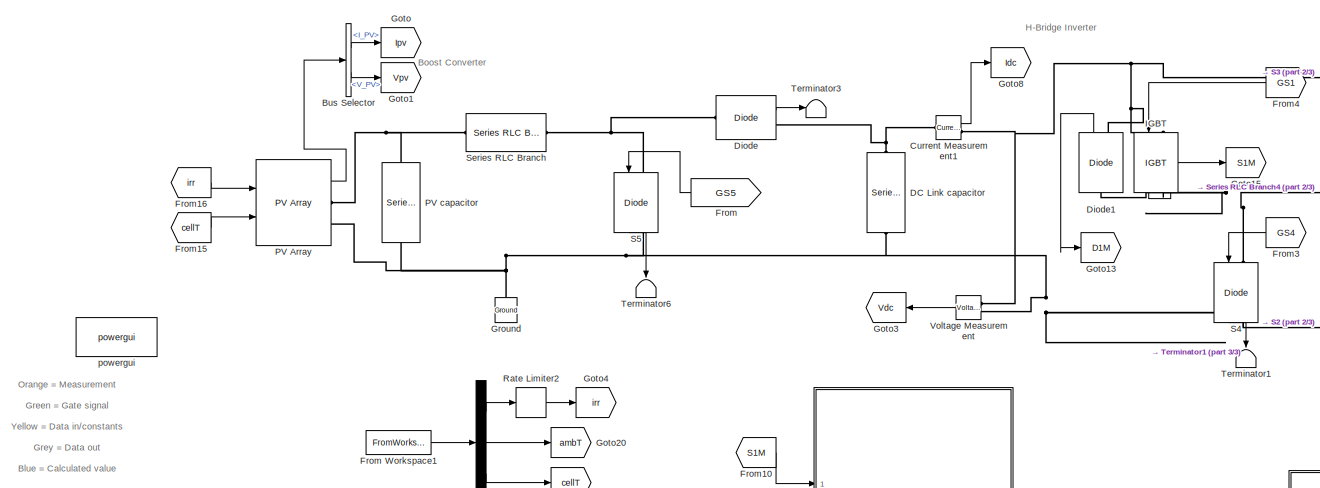
[diagram: root canvas - part 1/3, top left region]
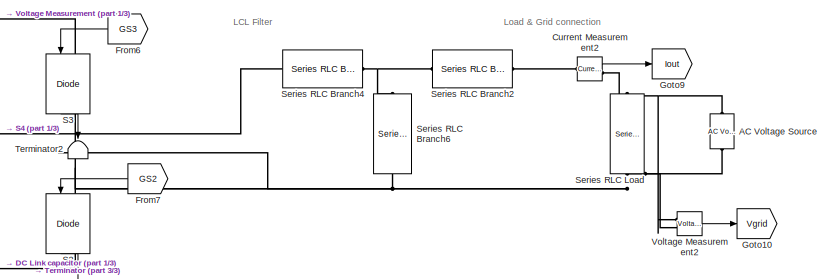
[diagram: root canvas - part 2/3, top right region]
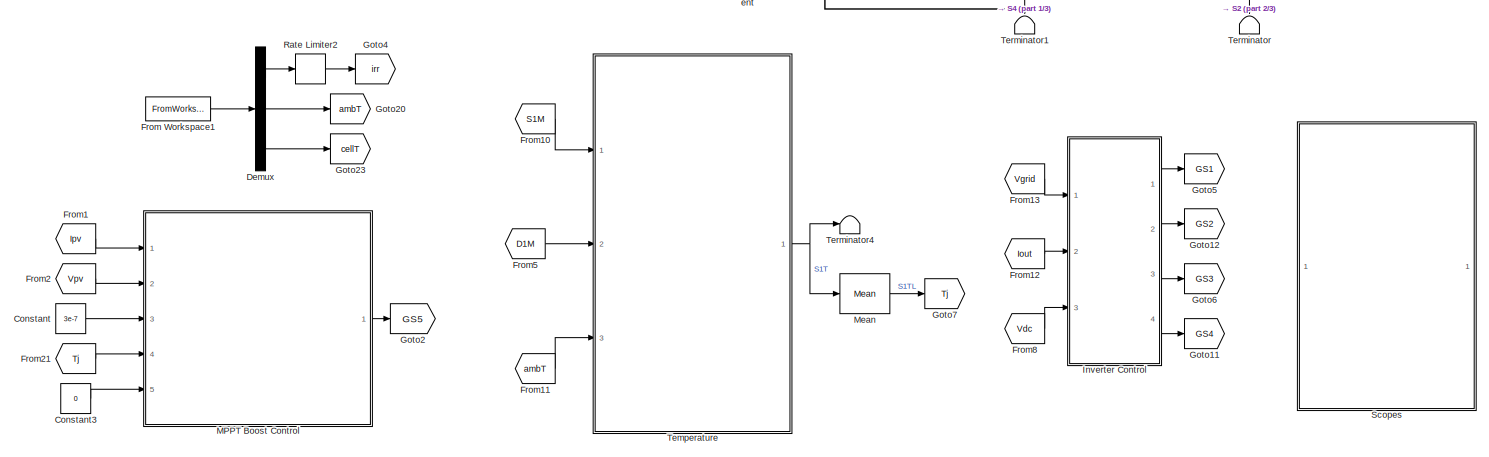
[diagram: root canvas - part 3/3, bottom center region]
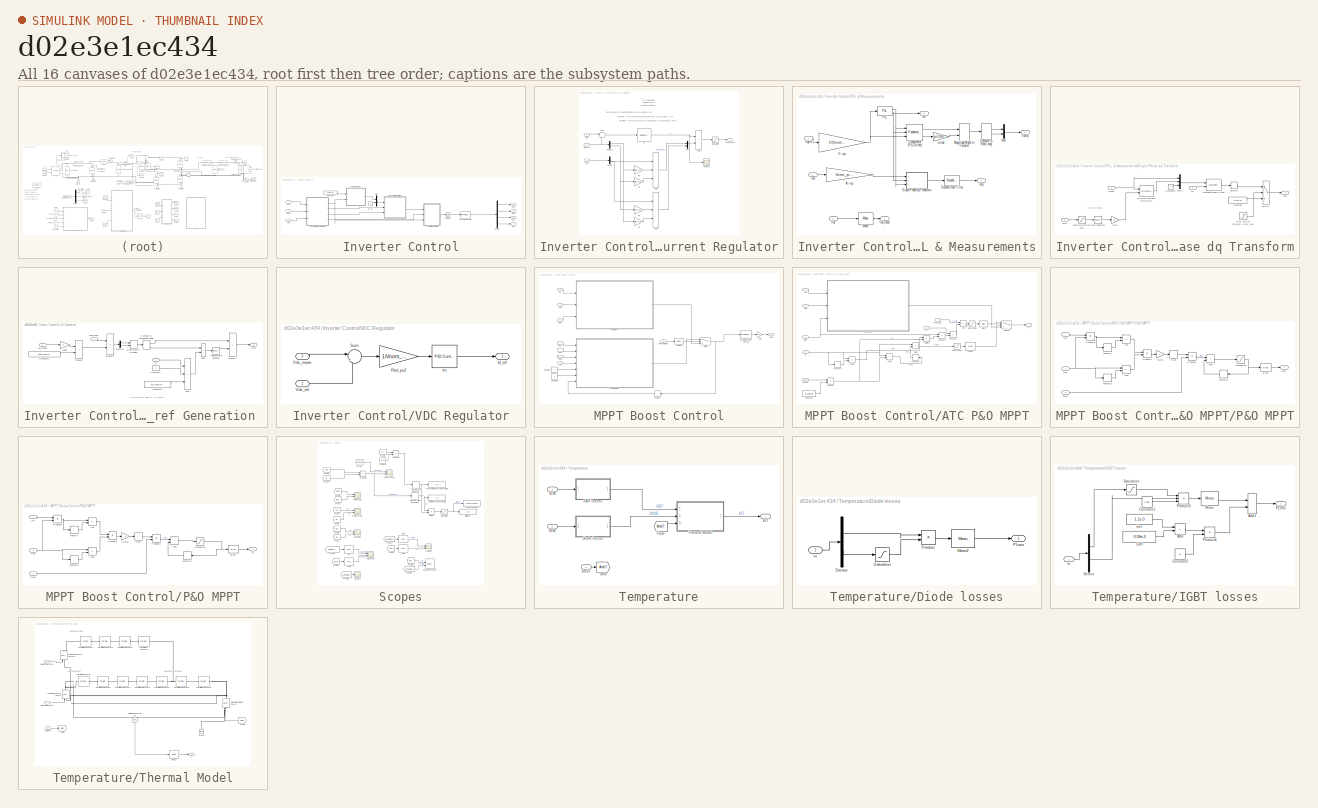
[diagram: thumbnail index - all 16 canvases of the model, root first then tree order]
MODEL slx_d02e3e1ec434
KIND model
CONFIG AbsTol = auto
CONFIG EnableMultiTasking = off
CONFIG FixedStep = Ts_Power
CONFIG InitFcn = freq = 60;\nn = 100;\na = 20;\nb = 10;\nc = 150;\n\nFc = n * freq; % Carrier frequency, used for generating inverter SPWM signal (Hz)\nTs_Power = 1/(a * Fc); % SPS sample time (sec)\nTs_Control = b * Ts_Power; % Inverter control sample time (sec)\nTs_Data = c * Ts_Power; % Data storage and scope sample time (sec)\n\nDbias = 0.0;\nDupperlim = 0.5;\nDlowerlim = 0.2;\n\nRon=75e-3;
CONFIG MaxStep = auto
CONFIG MinStep = auto
CONFIG RelTol = 1e-3
CONFIG SampleTimeConstraint = Unconstrained
CONFIG SolverName = FixedStepDiscrete
CONFIG StartTime = 0.0
CONFIG StopFcn = %load('temp1.mat')\n%[c,hist,edges,rmm,idx] = rainflow(temp.Data(:,3),temp.Time);\n%histogram('BinEdges',edges','BinCounts',sum(hist,2));\n%title('Histogram of S5 Thermal Cycles')\n%xlabel('Temperature Cycle Range')\n%ylabel('Cycle count')
CONFIG StopTime = 80
BLOCK [Reference] AC Voltage Source  REF=spsACVoltageSourceLib/AC Voltage Source
  Ports = [0, 0, 0, 0, 0, 1, 1]
  SourceBlock = spsACVoltageSourceLib/AC Voltage Source
  SourceProductBaseCode = PS
  SourceType = AC Voltage Source
BLOCK [BusSelector] Bus Selector
  OutputSignals = I_PV,V_PV
  Ports = [1, 2]
BLOCK [Constant] Constant
  Value = 3e-7
BLOCK [Constant] Constant3
  Value = 0
BLOCK [Reference] Current Measurement1  REF=spsCurrentMeasurementLib/Current Measurement
  Ports = [0, 1, 0, 0, 0, 1, 1]
  SourceBlock = spsCurrentMeasurementLib/Current Measurement
  SourceProductBaseCode = PS
  SourceType = Current Measurement
  UserDataPersistent = on
BLOCK [Reference] Current Measurement2  REF=spsCurrentMeasurementLib/Current Measurement
  Ports = [0, 1, 0, 0, 0, 1, 1]
  SourceBlock = spsCurrentMeasurementLib/Current Measurement
  SourceProductBaseCode = PS
  SourceType = Current Measurement
  UserDataPersistent = on
BLOCK [Reference] DC Link capacitor  REF=spsSeriesRLCBranchLib/Series RLC Branch
  NameLocation = right
  Ports = [0, 0, 0, 0, 0, 1, 1]
  SourceBlock = spsSeriesRLCBranchLib/Series RLC Branch
  SourceProductBaseCode = PS
  SourceType = Series RLC Branch
BLOCK [Demux] Demux
  Outputs = 3
  Ports = [1, 3]
BLOCK [Reference] Diode  REF=spsDiodeLib/Diode
  Ports = [0, 1, 0, 0, 0, 1, 1]
  SourceBlock = spsDiodeLib/Diode
  SourceProductBaseCode = PS
  SourceType = Diode
BLOCK [Reference] Diode1  REF=spsDiodeLib/Diode
  NameLocation = right
  Ports = [0, 1, 0, 0, 0, 1, 1]
  SourceBlock = spsDiodeLib/Diode
  SourceProductBaseCode = PS
  SourceType = Diode
BLOCK [From] From
  GotoTag = GS5
BLOCK [FromWorkspace] From Workspace1
  OutputAfterFinalValue = Holding final value
  SampleTime = Ts_Power
  VariableName = simin
BLOCK [From] From1
  GotoTag = Ipv
  TagVisibility = global
BLOCK [From] From10
  GotoTag = S1M
BLOCK [From] From11
  GotoTag = ambT
BLOCK [From] From12
  GotoTag = Iout
  TagVisibility = global
BLOCK [From] From13
  GotoTag = Vgrid
  TagVisibility = global
BLOCK [From] From15
  GotoTag = cellT
BLOCK [From] From16
  GotoTag = irr
  TagVisibility = global
BLOCK [From] From2
  GotoTag = Vpv
  TagVisibility = global
BLOCK [From] From21
  GotoTag = Tj
  TagVisibility = global
BLOCK [From] From3
  GotoTag = GS4
BLOCK [From] From4
  GotoTag = GS1
BLOCK [From] From5
  GotoTag = D1M
BLOCK [From] From6
  GotoTag = GS3
BLOCK [From] From7
  GotoTag = GS2
BLOCK [From] From8
  GotoTag = Vdc
  TagVisibility = global
BLOCK [Goto] Goto
  GotoTag = Ipv
  TagVisibility = global
BLOCK [Goto] Goto1
  GotoTag = Vpv
  TagVisibility = global
BLOCK [Goto] Goto10
  GotoTag = Vgrid
  TagVisibility = global
BLOCK [Goto] Goto11
  GotoTag = GS4
BLOCK [Goto] Goto12
  GotoTag = GS2
BLOCK [Goto] Goto13
  GotoTag = D1M
BLOCK [Goto] Goto15
  GotoTag = S1M
BLOCK [Goto] Goto2
  GotoTag = GS5
BLOCK [Goto] Goto20
  GotoTag = ambT
BLOCK [Goto] Goto23
  GotoTag = cellT
BLOCK [Goto] Goto3
  GotoTag = Vdc
  TagVisibility = global
BLOCK [Goto] Goto4
  GotoTag = irr
  TagVisibility = global
BLOCK [Goto] Goto5
  GotoTag = GS1
BLOCK [Goto] Goto6
  GotoTag = GS3
BLOCK [Goto] Goto7
  GotoTag = Tj
  TagVisibility = global
BLOCK [Goto] Goto8
  GotoTag = Idc
  TagVisibility = global
BLOCK [Goto] Goto9
  GotoTag = Iout
  TagVisibility = global
BLOCK [Reference] Ground  REF=spsGroundLib/Ground
  NameLocation = right
  Ports = [0, 0, 0, 0, 0, 1]
  SourceBlock = spsGroundLib/Ground
  SourceProductBaseCode = PS
  SourceType = Ground
BLOCK [Reference] IGBT  REF=spsIGBTLib/IGBT
  NameLocation = left
  Ports = [1, 1, 0, 0, 0, 1, 1]
  SourceBlock = spsIGBTLib/IGBT
  SourceProductBaseCode = PS
  SourceType = IGBT
BLOCK [SubSystem] Inverter Control
  Ports = [3, 4]
  RequestExecContextInheritance = off
BLOCK [SubSystem] Inverter Control/Current Regulator
  Ports = [3, 1]
  RequestExecContextInheritance = off
BLOCK [Sum] Inverter Control/Current Regulator/Add1
  IconShape = rectangular
  Inputs = ++-
  Ports = [3, 1]
BLOCK [Sum] Inverter Control/Current Regulator/Add2
  IconShape = rectangular
  Ports = [2, 1]
BLOCK [Sum] Inverter Control/Current Regulator/Add3
  IconShape = rectangular
  Inputs = +++
  Ports = [3, 1]
BLOCK [Demux] Inverter Control/Current Regulator/Demux
  Outputs = 2
  Ports = [1, 2]
BLOCK [Demux] Inverter Control/Current Regulator/Demux1
  Outputs = 2
  Ports = [1, 2]
BLOCK [Inport] Inverter Control/Current Regulator/IdIq
  Port = 3
  PortDimensions = 2
BLOCK [Inport] Inverter Control/Current Regulator/IdIq_ref
  PortDimensions = 2
BLOCK [Gain] Inverter Control/Current Regulator/Lff
  Gain = RLff(2)
  OutDataTypeStr = Inherit: Same as input
  ParamDataTypeStr = Inherit: Same as input
  SaturateOnIntegerOverflow = on
BLOCK [Gain] Inverter Control/Current Regulator/Lff  
  Gain = RLff(2)
  OutDataTypeStr = Inherit: Same as input
  ParamDataTypeStr = Inherit: Same as input
  SaturateOnIntegerOverflow = on
BLOCK [Mux] Inverter Control/Current Regulator/Mux
  DisplayOption = bar
  Inputs = 2
  Ports = [2, 1]
BLOCK [Reference] Inverter Control/Current Regulator/PI  REF=slpidlib/PID Controller
  Ports = [1, 1]
  SourceBlock = slpidlib/PID Controller
  SourceProductBaseCode = SL
  SourceType = PID 1dof
BLOCK [Scope] Inverter Control/Current Regulator/PI_Ireg1
  Floating = off
  NumInputPorts = 1
  Ports = [1]
  ScopeSpecificationString = Simulink.scopes.TimeScopeBlockCfg('CurrentConfiguration', extmgr.ConfigurationSet(extmgr.Configuration('Core','General UI',true),extmgr.Configuration('Core','Source UI',true),extmgr.Configuration('Sources','WiredSimulink',true,'DataLoggingSaveFormat','Array','DataLoggingDecimation','1','DataLoggingDecimateData',true),extmgr.Configuration('Visuals','Time Domain',true,'SerializedDisplays',{struct('M...<+1557ch>
BLOCK [Gain] Inverter Control/Current Regulator/Rff
  Gain = RLff(1)
  NameLocation = top
  OutDataTypeStr = Inherit: Same as input
  ParamDataTypeStr = Inherit: Same as input
  SaturateOnIntegerOverflow = on
BLOCK [Gain] Inverter Control/Current Regulator/Rff 
  Gain = RLff(1)
  NameLocation = top
  OutDataTypeStr = Inherit: Same as input
  ParamDataTypeStr = Inherit: Same as input
  SaturateOnIntegerOverflow = on
BLOCK [Saturate] Inverter Control/Current Regulator/Saturation
  LowerLimit = -1.5
  UpperLimit = 1.5
BLOCK [Sum] Inverter Control/Current Regulator/Sum
  Inputs = |-+
  Ports = [2, 1]
BLOCK [Inport] Inverter Control/Current Regulator/VdVq
  Port = 2
  PortDimensions = 2
BLOCK [Outport] Inverter Control/Current Regulator/VdVq_conv
  VectorParamsAs1DForOutWhenUnconnected = off
BLOCK [Demux] Inverter Control/Demux
  Ports = [1, 4]
BLOCK [Outport] Inverter Control/GS1
  NameLocation = top
  VectorParamsAs1DForOutWhenUnconnected = off
BLOCK [Outport] Inverter Control/GS2
  NameLocation = top
  Port = 2
  VectorParamsAs1DForOutWhenUnconnected = off
BLOCK [Outport] Inverter Control/GS3
  NameLocation = top
  Port = 3
  VectorParamsAs1DForOutWhenUnconnected = off
BLOCK [Outport] Inverter Control/GS4
  NameLocation = top
  Port = 4
  VectorParamsAs1DForOutWhenUnconnected = off
BLOCK [Inport] Inverter Control/Iout
  Port = 2
  PortDimensions = 1
BLOCK [Constant] Inverter Control/Iq_ref
  NameLocation = top
  SampleTime = Ts_Control
  Value = 0
BLOCK [Mux] Inverter Control/Mux
  DisplayOption = bar
  Inputs = 2
  Ports = [2, 1]
BLOCK [SubSystem] Inverter Control/PLL & Measurements
  Ports = [3, 4]
  RequestExecContextInheritance = off
BLOCK [Gain] Inverter Control/PLL & Measurements/A->pu
  Gain = Vnom_prim/Pnom/sqrt(2)
  OutDataTypeStr = Inherit: Same as input
  ParamDataTypeStr = Inherit: Same as input
  SaturateOnIntegerOverflow = on
BLOCK [ComplexToRealImag] Inverter Control/PLL & Measurements/Complex to Real-Imag
  Ports = [1, 2]
BLOCK [Reference] Inverter Control/PLL & Measurements/Fundamental (PLL-Driven)  REF=spsFundamentalPLLDrivenLib/Fundamental
(PLL-Driven)
  Ports = [3, 2]
  SourceBlock = spsFundamentalPLLDrivenLib/Fundamental\n(PLL-Driven)
  SourceProductBaseCode = PS
  SourceType = Fundamental (PLL-Driven)
BLOCK [Outport] Inverter Control/PLL & Measurements/IdIq
  Port = 3
  VectorParamsAs1DForOutWhenUnconnected = off
BLOCK [Inport] Inverter Control/PLL & Measurements/Iout
  Port = 2
BLOCK [MagnitudeAngleToComplex] Inverter Control/PLL & Measurements/Magnitude-Angle to Complex
  Ports = [2, 1]
BLOCK [Reference] Inverter Control/PLL & Measurements/Mean  REF=spsMeanLib/Mean
  Ports = [1, 1]
  SourceBlock = spsMeanLib/Mean
  SourceProductBaseCode = PS
  SourceType = Mean
BLOCK [Mux] Inverter Control/PLL & Measurements/Mux
  DisplayOption = bar
  Inputs = 2
  Ports = [2, 1]
BLOCK [Reference] Inverter Control/PLL & Measurements/PLL  REF=spsPLLLib/PLL
  Ports = [1, 2]
  SourceBlock = spsPLLLib/PLL
  SourceProductBaseCode = PS
  SourceType = PLL
BLOCK [Reference] Inverter Control/PLL & Measurements/Second-Order Filter  REF=spsSecondOrderFilterLib/Second-Order
Filter
  Ports = [1, 1]
  SourceBlock = spsSecondOrderFilterLib/Second-Order\nFilter
  SourceProductBaseCode = PS
  SourceType = Second-Order Filter
BLOCK [SubSystem] Inverter Control/PLL & Measurements/Single-Phase dq Transform
  Ports = [3, 1]
  RequestExecContextInheritance = off
BLOCK [Reference] Inverter Control/PLL & Measurements/Single-Phase dq Transform/Alpha-Beta-Zero to dq0  REF=spsAlphaBetaZerotodq0Lib/Alpha-Beta-Zero
to dq0
  Ports = [2, 1]
  SourceBlock = spsAlphaBetaZerotodq0Lib/Alpha-Beta-Zero\nto dq0
  SourceProductBaseCode = PS
  SourceType = Alpha-Beta-Zero to dq0 Transformation
BLOCK [Constant] Inverter Control/PLL & Measurements/Single-Phase dq Transform/Constant
  Value = [0.92 0]
BLOCK [Constant] Inverter Control/PLL & Measurements/Single-Phase dq Transform/Constant1
  Value = 0
BLOCK [Reference] Inverter Control/PLL & Measurements/Single-Phase dq Transform/Discrete Variable Time Delay  REF=spsDiscreteVariableTimeDelayLib/Discrete Variable
Time Delay
  Ports = [2, 1]
  SourceBlock = spsDiscreteVariableTimeDelayLib/Discrete Variable\nTime Delay
  SourceProductBaseCode = PS
  SourceType = Discrete Variable Time Delay
BLOCK [Step] Inverter Control/PLL & Measurements/Single-Phase dq Transform/First cycle of simulation Id=0.92, Iq=0
  SampleTime = Ts_Control
  Time = 1/Fnom
BLOCK [Inport] Inverter Control/PLL & Measurements/Single-Phase dq Transform/Freq
  Port = 3
BLOCK [Gain] Inverter Control/PLL & Measurements/Single-Phase dq Transform/Gain
  Gain = 1/4
BLOCK [Outport] Inverter Control/PLL & Measurements/Single-Phase dq Transform/Idq
  VectorParamsAs1DForOutWhenUnconnected = off
BLOCK [Inport] Inverter Control/PLL & Measurements/Single-Phase dq Transform/Imeas
BLOCK [Math] Inverter Control/PLL & Measurements/Single-Phase dq Transform/Math Function
  Operator = reciprocal
  Ports = [1, 1]
  SignedPower = on
BLOCK [Mux] Inverter Control/PLL & Measurements/Single-Phase dq Transform/Mux1
  DisplayOption = bar
  Inputs = 3
  Ports = [3, 1]
BLOCK [Selector] Inverter Control/PLL & Measurements/Single-Phase dq Transform/Selector
  IndexOptions = Index vector (dialog)
  Indices = [1 2]
  InputPortWidth = 3
  OutputSizes = 1
  Ports = [1, 1]
BLOCK [Switch] Inverter Control/PLL & Measurements/Single-Phase dq Transform/Switch
  Criteria = u2 ~= 0
  InputSameDT = off
  SaturateOnIntegerOverflow = off
BLOCK [Saturate] Inverter Control/PLL & Measurements/Single-Phase dq Transform/avoid division by zero
  LowerLimit = 30
  UpperLimit = 60
BLOCK [Inport] Inverter Control/PLL & Measurements/Single-Phase dq Transform/wt
  Port = 2
BLOCK [Gain] Inverter Control/PLL & Measurements/V->pu
  Gain = 1/(Vnom_prim*sqrt(2))
  OutDataTypeStr = Inherit: Same as input
  ParamDataTypeStr = Inherit: Same as input
  SaturateOnIntegerOverflow = on
BLOCK [Outport] Inverter Control/PLL & Measurements/VdVq
  Port = 2
  VectorParamsAs1DForOutWhenUnconnected = off
BLOCK [Inport] Inverter Control/PLL & Measurements/Vdc
  Port = 3
BLOCK [Outport] Inverter Control/PLL & Measurements/Vdc_mean
  VectorParamsAs1DForOutWhenUnconnected = off
BLOCK [Inport] Inverter Control/PLL & Measurements/Vgrid
BLOCK [Gain] Inverter Control/PLL & Measurements/to-rad
  Gain = pi/180
BLOCK [Outport] Inverter Control/PLL & Measurements/wt
  Port = 4
  VectorParamsAs1DForOutWhenUnconnected = off
BLOCK [Reference] Inverter Control/PWM_Generator  REF=spsPWMGenerator2LevelLib/PWM Generator
(2-Level)
  AttributesFormatString = %<ModulatorType>
  Ports = [1, 1]
  SourceBlock = spsPWMGenerator2LevelLib/PWM Generator\n(2-Level)
  SourceProductBaseCode = PS
  SourceType = PWM Generator (2-Level)
BLOCK [SubSystem] Inverter Control/U_ref Generation 
  Ports = [3, 1]
  RequestExecContextInheritance = off
BLOCK [Sum] Inverter Control/U_ref Generation /Add1
  IconShape = rectangular
  Inputs = +++
  Ports = [3, 1]
BLOCK [Sum] Inverter Control/U_ref Generation /Add2
  IconShape = rectangular
  Ports = [2, 1]
BLOCK [ComplexToMagnitudeAngle] Inverter Control/U_ref Generation /Complex to Magnitude-Angle
  Ports = [1, 2]
BLOCK [Constant] Inverter Control/U_ref Generation /Constant2
  SampleTime = Ts_Control
  Value = 0
BLOCK [Constant] Inverter Control/U_ref Generation /Constant3
  SampleTime = Ts_Control
  Value = Vnom_prim*sqrt(2)
BLOCK [Constant] Inverter Control/U_ref Generation /Constant4
  SampleTime = Ts_Control
  Value = Ts_Control*Fnom*(2*pi)
BLOCK [Demux] Inverter Control/U_ref Generation /Demux1
  Outputs = 2
  Ports = [1, 2]
BLOCK [Gain] Inverter Control/U_ref Generation /Gain1
BLOCK [Product] Inverter Control/U_ref Generation /Product
  Inputs = */
  Ports = [2, 1]
  RndMeth = Zero
BLOCK [Product] Inverter Control/U_ref Generation /Product1
  Inputs = */
  Ports = [2, 1]
  RndMeth = Zero
BLOCK [Product] Inverter Control/U_ref Generation /Product2
  Inputs = **
  Ports = [2, 1]
  RndMeth = Zero
BLOCK [RealImagToComplex] Inverter Control/U_ref Generation /Real-Imag to Complex
  Ports = [2, 1]
BLOCK [Trigonometry] Inverter Control/U_ref Generation /Trigonometric Function
  Ports = [1, 1]
BLOCK [Outport] Inverter Control/U_ref Generation /Uref
  VectorParamsAs1DForOutWhenUnconnected = off
BLOCK [Inport] Inverter Control/U_ref Generation /VdVq_conv
BLOCK [Inport] Inverter Control/U_ref Generation /Vdc_mean
  Port = 3
BLOCK [Inport] Inverter Control/U_ref Generation /wt
  Port = 2
BLOCK [UnitDelay] Inverter Control/Unit Delay
  HasFrameUpgradeWarning = on
  NameLocation = top
  SampleTime = Ts_Control
BLOCK [SubSystem] Inverter Control/VDC Regulator
  NameLocation = top
  Ports = [2, 1]
  RequestExecContextInheritance = off
BLOCK [Outport] Inverter Control/VDC Regulator/Id_ref
  InitialOutput = 0
  VectorParamsAs1DForOutWhenUnconnected = off
BLOCK [Reference] Inverter Control/VDC Regulator/PI  REF=slpidlib/PID Controller
  Ports = [1, 1]
  SourceBlock = slpidlib/PID Controller
  SourceProductBaseCode = SL
  SourceType = PID 1dof
BLOCK [Gain] Inverter Control/VDC Regulator/Rtot_pu2
  Gain = 1/Vnom_dc
  OutDataTypeStr = Inherit: Same as input
  ParamDataTypeStr = Inherit: Same as input
  SaturateOnIntegerOverflow = on
BLOCK [Sum] Inverter Control/VDC Regulator/Sum
  Inputs = |+-
  Ports = [2, 1]
BLOCK [Inport] Inverter Control/VDC Regulator/Vdc_mean
  Port = 2
  PortDimensions = 1
BLOCK [Inport] Inverter Control/VDC Regulator/Vdc_ref
  PortDimensions = 1
BLOCK [Inport] Inverter Control/Vdc
  Port = 3
  PortDimensions = 1
BLOCK [Inport] Inverter Control/Vgrid
  PortDimensions = 1
BLOCK [Constant] Inverter Control/Vnom_dc1
  SampleTime = Ts_Control
  Value = Vnom_dc
BLOCK [SubSystem] MPPT Boost Control
  Ports = [5, 1]
  RequestExecContextInheritance = off
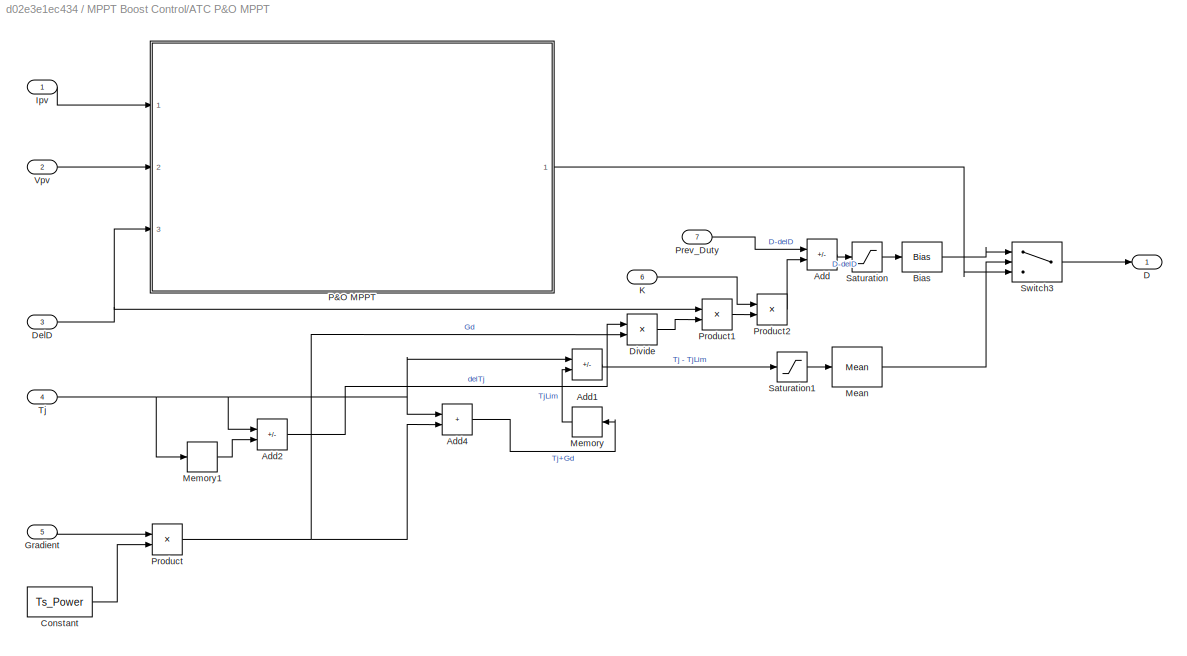
BLOCK [SubSystem] MPPT Boost Control/ATC P&O MPPT
  Ports = [7, 1]
  RequestExecContextInheritance = off
BLOCK [Sum] MPPT Boost Control/ATC P&O MPPT/Add
  IconShape = rectangular
  Inputs = +-
  Ports = [2, 1]
BLOCK [Sum] MPPT Boost Control/ATC P&O MPPT/Add1
  IconShape = rectangular
  Inputs = +-
  Ports = [2, 1]
BLOCK [Sum] MPPT Boost Control/ATC P&O MPPT/Add2
  IconShape = rectangular
  Inputs = +-
  Ports = [2, 1]
BLOCK [Sum] MPPT Boost Control/ATC P&O MPPT/Add4
  IconShape = rectangular
  Ports = [2, 1]
BLOCK [Bias] MPPT Boost Control/ATC P&O MPPT/Bias
  Bias = Dbias
  SaturateOnIntegerOverflow = off
BLOCK [Constant] MPPT Boost Control/ATC P&O MPPT/Constant
  Value = Ts_Power
BLOCK [Outport] MPPT Boost Control/ATC P&O MPPT/D
BLOCK [Inport] MPPT Boost Control/ATC P&O MPPT/DelD
  Port = 3
BLOCK [Product] MPPT Boost Control/ATC P&O MPPT/Divide
  Inputs = */
  Ports = [2, 1]
BLOCK [Inport] MPPT Boost Control/ATC P&O MPPT/Gradient
  Port = 5
BLOCK [Inport] MPPT Boost Control/ATC P&O MPPT/Ipv
BLOCK [Inport] MPPT Boost Control/ATC P&O MPPT/K
  Port = 6
BLOCK [Reference] MPPT Boost Control/ATC P&O MPPT/Mean  REF=spsMeanLib/Mean
  Ports = [1, 1]
  SourceBlock = spsMeanLib/Mean
  SourceProductBaseCode = PS
  SourceType = Mean
BLOCK [Memory] MPPT Boost Control/ATC P&O MPPT/Memory
BLOCK [Memory] MPPT Boost Control/ATC P&O MPPT/Memory1
BLOCK [SubSystem] MPPT Boost Control/ATC P&O MPPT/P&O MPPT
  Ports = [3, 1]
  RequestExecContextInheritance = off
BLOCK [Sum] MPPT Boost Control/ATC P&O MPPT/P&O MPPT/Add
  IconShape = rectangular
  Inputs = +-
  Ports = [2, 1]
BLOCK [Sum] MPPT Boost Control/ATC P&O MPPT/P&O MPPT/Add1
  IconShape = rectangular
  Inputs = +-
  Ports = [2, 1]
BLOCK [Sum] MPPT Boost Control/ATC P&O MPPT/P&O MPPT/Add2
  IconShape = rectangular
  Ports = [2, 1]
BLOCK [Bias] MPPT Boost Control/ATC P&O MPPT/P&O MPPT/Bias
  Bias = Dbias
  SaturateOnIntegerOverflow = off
BLOCK [Inport] MPPT Boost Control/ATC P&O MPPT/P&O MPPT/DelD
  Port = 3
BLOCK [Outport] MPPT Boost Control/ATC P&O MPPT/P&O MPPT/Duty
BLOCK [Gain] MPPT Boost Control/ATC P&O MPPT/P&O MPPT/Gain1
  Gain = -1
BLOCK [Inport] MPPT Boost Control/ATC P&O MPPT/P&O MPPT/Ipv
BLOCK [Memory] MPPT Boost Control/ATC P&O MPPT/P&O MPPT/Memory
BLOCK [Memory] MPPT Boost Control/ATC P&O MPPT/P&O MPPT/Memory1
BLOCK [Memory] MPPT Boost Control/ATC P&O MPPT/P&O MPPT/Memory2
BLOCK [Product] MPPT Boost Control/ATC P&O MPPT/P&O MPPT/Product1
  Ports = [2, 1]
BLOCK [Product] MPPT Boost Control/ATC P&O MPPT/P&O MPPT/Product2
  Ports = [2, 1]
BLOCK [Product] MPPT Boost Control/ATC P&O MPPT/P&O MPPT/Product3
  Ports = [2, 1]
BLOCK [Saturate] MPPT Boost Control/ATC P&O MPPT/P&O MPPT/Saturation
  LowerLimit = Dlowerlim
  UpperLimit = Dupperlim
BLOCK [Signum] MPPT Boost Control/ATC P&O MPPT/P&O MPPT/Sign
BLOCK [Inport] MPPT Boost Control/ATC P&O MPPT/P&O MPPT/Vpv
  Port = 2
BLOCK [Inport] MPPT Boost Control/ATC P&O MPPT/Prev_Duty
  Port = 7
BLOCK [Product] MPPT Boost Control/ATC P&O MPPT/Product
  Ports = [2, 1]
BLOCK [Product] MPPT Boost Control/ATC P&O MPPT/Product1
  Ports = [2, 1]
BLOCK [Product] MPPT Boost Control/ATC P&O MPPT/Product2
  Ports = [2, 1]
BLOCK [Saturate] MPPT Boost Control/ATC P&O MPPT/Saturation
  LowerLimit = Dlowerlim
  UpperLimit = Dupperlim
BLOCK [Saturate] MPPT Boost Control/ATC P&O MPPT/Saturation1
  LowerLimit = -2e-3
  UpperLimit = 2e-3
BLOCK [Switch] MPPT Boost Control/ATC P&O MPPT/Switch3
  Criteria = u2 > Threshold
  InputSameDT = off
  SaturateOnIntegerOverflow = off
BLOCK [Inport] MPPT Boost Control/ATC P&O MPPT/Tj
  Port = 4
BLOCK [Inport] MPPT Boost Control/ATC P&O MPPT/Vpv
  Port = 2
BLOCK [Constant] MPPT Boost Control/Constant
  Value = 2
BLOCK [Constant] MPPT Boost Control/Constant1
BLOCK [Inport] MPPT Boost Control/DelD
  Port = 3
BLOCK [InportShadow] MPPT Boost Control/DelD1
  Port = 3
BLOCK [Gain] MPPT Boost Control/Gain
  Gain = 20
BLOCK [Outport] MPPT Boost Control/Gate
BLOCK [Inport] MPPT Boost Control/Ipv
BLOCK [InportShadow] MPPT Boost Control/Ipv1
BLOCK [Inport] MPPT Boost Control/MPPT selector
  Port = 5
BLOCK [Memory] MPPT Boost Control/Memory
BLOCK [Reference] MPPT Boost Control/On Delay  REF=spsOnDelayLib/On Delay
  Ports = [1, 1]
  SourceBlock = spsOnDelayLib/On Delay
  SourceProductBaseCode = PS
  SourceType = On/Off Delay
BLOCK [SubSystem] MPPT Boost Control/P&O MPPT
  Ports = [3, 1]
  RequestExecContextInheritance = off
BLOCK [Sum] MPPT Boost Control/P&O MPPT/Add
  IconShape = rectangular
  Inputs = +-
  Ports = [2, 1]
BLOCK [Sum] MPPT Boost Control/P&O MPPT/Add1
  IconShape = rectangular
  Inputs = +-
  Ports = [2, 1]
BLOCK [Sum] MPPT Boost Control/P&O MPPT/Add2
  IconShape = rectangular
  Ports = [2, 1]
BLOCK [Bias] MPPT Boost Control/P&O MPPT/Bias
  Bias = Dbias
  SaturateOnIntegerOverflow = off
BLOCK [Outport] MPPT Boost Control/P&O MPPT/D
BLOCK [Inport] MPPT Boost Control/P&O MPPT/DelD
  Port = 3
BLOCK [Gain] MPPT Boost Control/P&O MPPT/Gain1
  Gain = -1
BLOCK [Inport] MPPT Boost Control/P&O MPPT/Ipv
BLOCK [Memory] MPPT Boost Control/P&O MPPT/Memory
BLOCK [Memory] MPPT Boost Control/P&O MPPT/Memory1
BLOCK [Memory] MPPT Boost Control/P&O MPPT/Memory2
BLOCK [Product] MPPT Boost Control/P&O MPPT/Product1
  Ports = [2, 1]
BLOCK [Product] MPPT Boost Control/P&O MPPT/Product2
  Ports = [2, 1]
BLOCK [Product] MPPT Boost Control/P&O MPPT/Product3
  Ports = [2, 1]
BLOCK [Saturate] MPPT Boost Control/P&O MPPT/Saturation
  LowerLimit = Dlowerlim
  UpperLimit = Dupperlim
BLOCK [Signum] MPPT Boost Control/P&O MPPT/Sign
BLOCK [Inport] MPPT Boost Control/P&O MPPT/Vpv
  Port = 2
BLOCK [Reference] MPPT Boost Control/PWM Generator (DC-DC)  REF=spsPWMGeneratorDCDCLib/PWM Generator
(DC-DC)
  Ports = [1, 1]
  SourceBlock = spsPWMGeneratorDCDCLib/PWM Generator\n(DC-DC)
  SourceProductBaseCode = PS
  SourceType = PWM Generator (DC-DC)
BLOCK [Switch] MPPT Boost Control/Switch
  Criteria = u2 > Threshold
  InputSameDT = off
  SaturateOnIntegerOverflow = off
  Threshold = 0.5
BLOCK [Inport] MPPT Boost Control/Tj
  Port = 4
BLOCK [Inport] MPPT Boost Control/Vpv
  Port = 2
BLOCK [InportShadow] MPPT Boost Control/Vpv1
  Port = 2
BLOCK [Reference] Mean  REF=spsMeanLib/Mean
  Ports = [1, 1]
  SourceBlock = spsMeanLib/Mean
  SourceProductBaseCode = PS
  SourceType = Mean
BLOCK [Reference] PV Array  REF=spsPVArrayLib/PV Array
  Ports = [2, 1, 0, 0, 0, 0, 2]
  SourceBlock = spsPVArrayLib/PV Array
  SourceProductBaseCode = PS
  SourceType = PV array
BLOCK [Reference] PV capacitor  REF=spsSeriesRLCBranchLib/Series RLC Branch
  NameLocation = right
  Ports = [0, 0, 0, 0, 0, 1, 1]
  SourceBlock = spsSeriesRLCBranchLib/Series RLC Branch
  SourceProductBaseCode = PS
  SourceType = Series RLC Branch
BLOCK [RateLimiter] Rate Limiter2
  FallingSlewLimit = -2000
  RisingSlewLimit = 2000
  SampleTimeMode = inherited
BLOCK [Reference] S2  REF=spsIGBTDiodeLib/IGBT//Diode
  NameLocation = left
  Ports = [1, 1, 0, 0, 0, 1, 1]
  SourceBlock = spsIGBTDiodeLib/IGBT//Diode
  SourceProductBaseCode = PS
  SourceType = IGBT/Diode
BLOCK [Reference] S3  REF=spsIGBTDiodeLib/IGBT//Diode
  NameLocation = left
  Ports = [1, 1, 0, 0, 0, 1, 1]
  SourceBlock = spsIGBTDiodeLib/IGBT//Diode
  SourceProductBaseCode = PS
  SourceType = IGBT/Diode
BLOCK [Reference] S4  REF=spsIGBTDiodeLib/IGBT//Diode
  NameLocation = left
  Ports = [1, 1, 0, 0, 0, 1, 1]
  SourceBlock = spsIGBTDiodeLib/IGBT//Diode
  SourceProductBaseCode = PS
  SourceType = IGBT/Diode
BLOCK [Reference] S5  REF=spsIGBTDiodeLib/IGBT//Diode
  NameLocation = left
  Ports = [1, 1, 0, 0, 0, 1, 1]
  SourceBlock = spsIGBTDiodeLib/IGBT//Diode
  SourceProductBaseCode = PS
  SourceType = IGBT/Diode
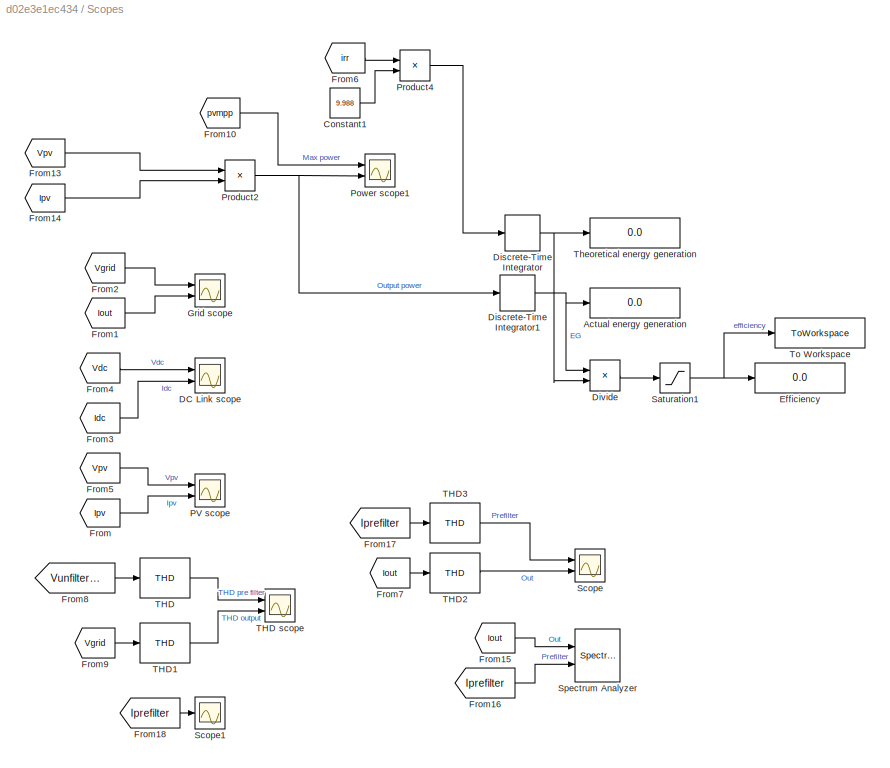
BLOCK [SubSystem] Scopes
  Ports = []
  RequestExecContextInheritance = off
BLOCK [Display] Scopes/Actual energy generation
  Decimation = 1
  Ports = [1]
BLOCK [Constant] Scopes/Constant1
  SampleTime = Ts_Power
  Value = 9.988
BLOCK [Scope] Scopes/DC Link scope
  Commented = on
  Floating = off
  NumInputPorts = 2
  Ports = [2]
  ScopeSpecificationString = Simulink.scopes.TimeScopeBlockCfg('CurrentConfiguration', extmgr.ConfigurationSet(extmgr.Configuration('Core','General UI',true),extmgr.Configuration('Core','Source UI',true),extmgr.Configuration('Sources','WiredSimulink',true,'DataLoggingVariableName','ScopeData2','SampleTime','Ts_Data'),extmgr.Configuration('Visuals','Time Domain',true,'SerializedDisplays',{struct('MinYLimReal','-183.52674','Max...<+1780ch>
BLOCK [DiscreteIntegrator] Scopes/Discrete-Time Integrator
  ICPrevOutput = DiscIntNeverNeededParam
  ICPrevScaledInput = DiscIntNeverNeededParam
  InitialConditionSetting = Auto
  Ports = [1, 1]
  SampleTime = Ts_Power
BLOCK [DiscreteIntegrator] Scopes/Discrete-Time Integrator1
  ICPrevOutput = DiscIntNeverNeededParam
  ICPrevScaledInput = DiscIntNeverNeededParam
  InitialConditionSetting = Auto
  Ports = [1, 1]
  SampleTime = Ts_Power
BLOCK [Product] Scopes/Divide
  Inputs = */
  Ports = [2, 1]
BLOCK [Display] Scopes/Efficiency
  Decimation = 1
  Ports = [1]
BLOCK [From] Scopes/From
  Commented = on
  GotoTag = Ipv
  TagVisibility = global
BLOCK [From] Scopes/From1
  Commented = on
  GotoTag = Iout
  TagVisibility = global
BLOCK [From] Scopes/From10
  Commented = on
  GotoTag = pvmpp
  TagVisibility = global
BLOCK [From] Scopes/From13
  GotoTag = Vpv
  TagVisibility = global
BLOCK [From] Scopes/From14
  GotoTag = Ipv
  TagVisibility = global
BLOCK [From] Scopes/From15
  Commented = on
  GotoTag = Iout
  TagVisibility = global
BLOCK [From] Scopes/From16
  Commented = on
  GotoTag = Iprefilter
  TagVisibility = global
BLOCK [From] Scopes/From17
  Commented = on
  GotoTag = Iprefilter
  TagVisibility = global
BLOCK [From] Scopes/From18
  Commented = on
  GotoTag = Iprefilter
  TagVisibility = global
BLOCK [From] Scopes/From2
  Commented = on
  GotoTag = Vgrid
  TagVisibility = global
BLOCK [From] Scopes/From3
  Commented = on
  GotoTag = Idc
  TagVisibility = global
BLOCK [From] Scopes/From4
  Commented = on
  GotoTag = Vdc
  TagVisibility = global
BLOCK [From] Scopes/From5
  Commented = on
  GotoTag = Vpv
  TagVisibility = global
BLOCK [From] Scopes/From6
  GotoTag = irr
  TagVisibility = global
BLOCK [From] Scopes/From7
  Commented = on
  GotoTag = Iout
  TagVisibility = global
BLOCK [From] Scopes/From8
  Commented = on
  GotoTag = Vunfiltered
BLOCK [From] Scopes/From9
  Commented = on
  GotoTag = Vgrid
  TagVisibility = global
BLOCK [Scope] Scopes/Grid scope
  Commented = on
  Floating = off
  NumInputPorts = 2
  Ports = [2]
  ScopeSpecificationString = Simulink.scopes.TimeScopeBlockCfg('CurrentConfiguration', extmgr.ConfigurationSet(extmgr.Configuration('Core','General UI',true),extmgr.Configuration('Core','Source UI',true),extmgr.Configuration('Sources','WiredSimulink',true,'DataLoggingVariableName','ScopeData2'),extmgr.Configuration('Visuals','Time Domain',true,'SerializedDisplays',{struct('MinYLimReal','-424.26407','MaxYLimReal','424.26407','...<+1616ch>
BLOCK [Scope] Scopes/PV scope
  Commented = on
  Floating = off
  NumInputPorts = 2
  Ports = [2]
  ScopeSpecificationString = Simulink.scopes.TimeScopeBlockCfg('CurrentConfiguration', extmgr.ConfigurationSet(extmgr.Configuration('Core','General UI',true),extmgr.Configuration('Core','Source UI',true),extmgr.Configuration('Sources','WiredSimulink',true,'DataLoggingVariableName','ScopeData4','SampleTime','Ts_Data'),extmgr.Configuration('Visuals','Time Domain',true,'SerializedDisplays',{struct('MinYLimReal','-36.55462','MaxY...<+1514ch>
BLOCK [Scope] Scopes/Power scope1
  Commented = on
  Floating = off
  NumInputPorts = 2
  Ports = [2]
  ScopeSpecificationString = Simulink.scopes.TimeScopeBlockCfg('CurrentConfiguration', extmgr.ConfigurationSet(extmgr.Configuration('Core','General UI',true),extmgr.Configuration('Core','Source UI',true),extmgr.Configuration('Sources','WiredSimulink',true,'DataLoggingVariableName','ScopeData1','SampleTime','Ts_Data'),extmgr.Configuration('Visuals','Time Domain',true,'SerializedDisplays',{struct('MinYLimReal','-17885.24277','M...<+1817ch>
BLOCK [Product] Scopes/Product2
  Ports = [2, 1]
BLOCK [Product] Scopes/Product4
  Ports = [2, 1]
BLOCK [Saturate] Scopes/Saturation1
  LowerLimit = 0
  UpperLimit = 1
BLOCK [Scope] Scopes/Scope
  Commented = on
  Floating = off
  NumInputPorts = 2
  Ports = [2]
  ScopeSpecificationString = Simulink.scopes.TimeScopeBlockCfg('CurrentConfiguration', extmgr.ConfigurationSet(extmgr.Configuration('Core','General UI',true),extmgr.Configuration('Core','Source UI',true),extmgr.Configuration('Sources','WiredSimulink',true,'DataLoggingVariableName','ScopeData1'),extmgr.Configuration('Visuals','Time Domain',true,'SerializedDisplays',{struct('MinYLimReal','-0.00193','MaxYLimReal','0.06364','YLab...<+1497ch>
BLOCK [Scope] Scopes/Scope1
  Commented = on
  Floating = off
  NumInputPorts = 1
  Ports = [1]
  ScopeSpecificationString = Simulink.scopes.TimeScopeBlockCfg('CurrentConfiguration', extmgr.ConfigurationSet(extmgr.Configuration('Core','General UI',true),extmgr.Configuration('Core','Source UI',true),extmgr.Configuration('Sources','WiredSimulink',true,'DataLoggingVariableName','ScopeData1'),extmgr.Configuration('Visuals','Time Domain',true,'SerializedDisplays',{struct('MinYLimReal','-62.43334','MaxYLimReal','63.30303','YL...<+1409ch>
BLOCK [SpectrumAnalyzer] Scopes/Spectrum Analyzer
  Commented = on
  NumInputPorts = 2
  Ports = [2]
  ScopeSpecificationString = spbscopes.SpectrumAnalyzerBlockCfg('CurrentConfiguration', extmgr.ConfigurationSet(extmgr.Configuration('Core','General UI',true,'FigureColor',[0.156862745098039 0.156862745098039 0.156862745098039]),extmgr.Configuration('Core','Source UI',true),extmgr.Configuration('Sources','WiredSimulink',true),extmgr.Configuration('Visuals','Spectrum',true,'AxesProperties',struct('Color',{[0 0 0],[0 0 0]},'XCo...<+2063ch>
BLOCK [Reference] Scopes/THD  REF=spsTHDLib/THD
  Commented = on
  Ports = [1, 1]
  SourceBlock = spsTHDLib/THD
  SourceProductBaseCode = PS
  SourceType = THD
BLOCK [Scope] Scopes/THD scope
  Commented = on
  Floating = off
  NumInputPorts = 2
  Ports = [2]
  ScopeSpecificationString = Simulink.scopes.TimeScopeBlockCfg('CurrentConfiguration', extmgr.ConfigurationSet(extmgr.Configuration('Core','General UI',true),extmgr.Configuration('Core','Source UI',true),extmgr.Configuration('Sources','WiredSimulink',true,'DataLoggingVariableName','ScopeData5'),extmgr.Configuration('Visuals','Time Domain',true,'SerializedDisplays',{struct('MinYLimReal','0.000000005','MaxYLimReal','0.000000025...<+2160ch>
BLOCK [Reference] Scopes/THD1  REF=spsTHDLib/THD
  Commented = on
  Ports = [1, 1]
  SourceBlock = spsTHDLib/THD
  SourceProductBaseCode = PS
  SourceType = THD
BLOCK [Reference] Scopes/THD2  REF=spsTHDLib/THD
  Commented = on
  Ports = [1, 1]
  SourceBlock = spsTHDLib/THD
  SourceProductBaseCode = PS
  SourceType = THD
BLOCK [Reference] Scopes/THD3  REF=spsTHDLib/THD
  Commented = on
  Ports = [1, 1]
  SourceBlock = spsTHDLib/THD
  SourceProductBaseCode = PS
  SourceType = THD
BLOCK [Display] Scopes/Theoretical energy generation
  Decimation = 1
  Ports = [1]
BLOCK [ToWorkspace] Scopes/To Workspace
  FixptAsFi = on
  MaxDataPoints = 1
  Ports = [1]
  SampleTime = 60
  VariableName = efficiency
BLOCK [Reference] Series RLC Branch  REF=spsSeriesRLCBranchLib/Series RLC Branch
  Ports = [0, 0, 0, 0, 0, 1, 1]
  SourceBlock = spsSeriesRLCBranchLib/Series RLC Branch
  SourceProductBaseCode = PS
  SourceType = Series RLC Branch
BLOCK [Reference] Series RLC Branch2  REF=spsSeriesRLCBranchLib/Series RLC Branch
  NameLocation = top
  Ports = [0, 0, 0, 0, 0, 1, 1]
  SourceBlock = spsSeriesRLCBranchLib/Series RLC Branch
  SourceProductBaseCode = PS
  SourceType = Series RLC Branch
BLOCK [Reference] Series RLC Branch4  REF=spsSeriesRLCBranchLib/Series RLC Branch
  NameLocation = top
  Ports = [0, 0, 0, 0, 0, 1, 1]
  SourceBlock = spsSeriesRLCBranchLib/Series RLC Branch
  SourceProductBaseCode = PS
  SourceType = Series RLC Branch
BLOCK [Reference] Series RLC Branch6  REF=spsSeriesRLCBranchLib/Series RLC Branch
  NameLocation = right
  Ports = [0, 0, 0, 0, 0, 1, 1]
  SourceBlock = spsSeriesRLCBranchLib/Series RLC Branch
  SourceProductBaseCode = PS
  SourceType = Series RLC Branch
BLOCK [Reference] Series RLC Load  REF=spsSeriesRLCLoadLib/Series RLC Load
  AttributesFormatString = \n
  NameLocation = left
  Ports = [0, 0, 0, 0, 0, 1, 1]
  SourceBlock = spsSeriesRLCLoadLib/Series RLC Load
  SourceProductBaseCode = PS
  SourceType = Series RLC Load
BLOCK [SubSystem] Temperature
  Ports = [3, 1]
  RequestExecContextInheritance = off
BLOCK [Inport] Temperature/D1M
  Port = 2
BLOCK [SubSystem] Temperature/Diode losses
  Ports = [1, 1]
  RequestExecContextInheritance = off
BLOCK [Demux] Temperature/Diode losses/Demux
  Outputs = 2
  Ports = [1, 2]
BLOCK [Reference] Temperature/Diode losses/Mean2  REF=spsMeanLib/Mean
  Ports = [1, 1]
  SourceBlock = spsMeanLib/Mean
  SourceProductBaseCode = PS
  SourceType = Mean
BLOCK [Outport] Temperature/Diode losses/PLoss
BLOCK [Product] Temperature/Diode losses/Product
  Ports = [2, 1]
BLOCK [Saturate] Temperature/Diode losses/Saturation
  LowerLimit = 0.8
  UpperLimit = 1000
BLOCK [Inport] Temperature/Diode losses/m
BLOCK [From] Temperature/From
  GotoTag = AmbT
BLOCK [Goto] Temperature/Goto
  GotoTag = AmbT
BLOCK [SubSystem] Temperature/IGBT losses
  Ports = [1, 1]
  RequestExecContextInheritance = off
BLOCK [Sum] Temperature/IGBT losses/Add
  IconShape = rectangular
  Ports = [2, 1]
BLOCK [Sum] Temperature/IGBT losses/Add1
  IconShape = rectangular
  Ports = [2, 1]
BLOCK [Constant] Temperature/IGBT losses/Constant1
  Value = 0.325
BLOCK [Constant] Temperature/IGBT losses/Constant2
  Value = Fc
BLOCK [Demux] Temperature/IGBT losses/Demux
  Outputs = 2
  Ports = [1, 2]
BLOCK [Constant] Temperature/IGBT losses/Eoff
  Value = 0.58e-3
BLOCK [Constant] Temperature/IGBT losses/Eon
  Value = 1.1e-3
BLOCK [Reference] Temperature/IGBT losses/Mean  REF=spsMeanLib/Mean
  Ports = [1, 1]
  SourceBlock = spsMeanLib/Mean
  SourceProductBaseCode = PS
  SourceType = Mean
BLOCK [Outport] Temperature/IGBT losses/PLoss
BLOCK [Product] Temperature/IGBT losses/Product3
  Inputs = 3
  Ports = [3, 1]
BLOCK [Product] Temperature/IGBT losses/Product4
  Ports = [2, 1]
BLOCK [Saturate] Temperature/IGBT losses/Saturation
  LowerLimit = 0
  UpperLimit = 100
BLOCK [Inport] Temperature/IGBT losses/m
BLOCK [Inport] Temperature/S1M
BLOCK [Outport] Temperature/S1T
BLOCK [SubSystem] Temperature/Thermal Model
  Ports = [3, 1]
  RequestExecContextInheritance = off
BLOCK [Inport] Temperature/Thermal Model/Ambient T
  Port = 3
BLOCK [Reference] Temperature/Thermal Model/Controlled Current Source  REF=spsControlledCurrentSourceLib/Controlled Current Source
  Ports = [1, 0, 0, 0, 0, 1, 1]
  SourceBlock = spsControlledCurrentSourceLib/Controlled Current Source
  SourceProductBaseCode = PS
  SourceType = Controlled Current Source
BLOCK [Reference] Temperature/Thermal Model/Controlled Current Source1  REF=spsControlledCurrentSourceLib/Controlled Current Source
  Ports = [1, 0, 0, 0, 0, 1, 1]
  SourceBlock = spsControlledCurrentSourceLib/Controlled Current Source
  SourceProductBaseCode = PS
  SourceType = Controlled Current Source
BLOCK [Reference] Temperature/Thermal Model/Controlled Voltage Source  REF=spsControlledVoltageSourceLib/Controlled Voltage Source
  Ports = [1, 0, 0, 0, 0, 1, 1]
  SourceBlock = spsControlledVoltageSourceLib/Controlled Voltage Source
  SourceProductBaseCode = PS
  SourceType = Controlled Voltage Source
BLOCK [Inport] Temperature/Thermal Model/Diode Power Loss
  Port = 2
BLOCK [From] Temperature/Thermal Model/From4
  GotoTag = ambT
  NameLocation = top
BLOCK [Goto] Temperature/Thermal Model/Goto2
  GotoTag = ambT
BLOCK [Reference] Temperature/Thermal Model/Ground  REF=spsGroundLib/Ground
  NameLocation = right
  Ports = [0, 0, 0, 0, 0, 1]
  SourceBlock = spsGroundLib/Ground
  SourceProductBaseCode = PS
  SourceType = Ground
BLOCK [Inport] Temperature/Thermal Model/IGBT Power Loss
BLOCK [Reference] Temperature/Thermal Model/Mean2  REF=spsMeanLib/Mean
  Ports = [1, 1]
  SourceBlock = spsMeanLib/Mean
  SourceProductBaseCode = PS
  SourceType = Mean
BLOCK [Reference] Temperature/Thermal Model/Parallel RLC Branch  REF=spsParallelRLCBranchLib/Parallel RLC Branch
  AttributesFormatString = \n
  Ports = [0, 0, 0, 0, 0, 1, 1]
  SourceBlock = spsParallelRLCBranchLib/Parallel RLC Branch
  SourceProductBaseCode = PS
  SourceType = Parallel RLC Branch
BLOCK [Reference] Temperature/Thermal Model/Parallel RLC Branch1  REF=spsParallelRLCBranchLib/Parallel RLC Branch
  AttributesFormatString = \n
  Ports = [0, 0, 0, 0, 0, 1, 1]
  SourceBlock = spsParallelRLCBranchLib/Parallel RLC Branch
  SourceProductBaseCode = PS
  SourceType = Parallel RLC Branch
BLOCK [Reference] Temperature/Thermal Model/Parallel RLC Branch10  REF=spsParallelRLCBranchLib/Parallel RLC Branch
  AttributesFormatString = \n
  Ports = [0, 0, 0, 0, 0, 1, 1]
  SourceBlock = spsParallelRLCBranchLib/Parallel RLC Branch
  SourceProductBaseCode = PS
  SourceType = Parallel RLC Branch
BLOCK [Reference] Temperature/Thermal Model/Parallel RLC Branch2  REF=spsParallelRLCBranchLib/Parallel RLC Branch
  AttributesFormatString = \n
  Ports = [0, 0, 0, 0, 0, 1, 1]
  SourceBlock = spsParallelRLCBranchLib/Parallel RLC Branch
  SourceProductBaseCode = PS
  SourceType = Parallel RLC Branch
BLOCK [Reference] Temperature/Thermal Model/Parallel RLC Branch3  REF=spsParallelRLCBranchLib/Parallel RLC Branch
  AttributesFormatString = \n
  Ports = [0, 0, 0, 0, 0, 1, 1]
  SourceBlock = spsParallelRLCBranchLib/Parallel RLC Branch
  SourceProductBaseCode = PS
  SourceType = Parallel RLC Branch
BLOCK [Reference] Temperature/Thermal Model/Parallel RLC Branch4  REF=spsParallelRLCBranchLib/Parallel RLC Branch
  AttributesFormatString = \n
  Ports = [0, 0, 0, 0, 0, 1, 1]
  SourceBlock = spsParallelRLCBranchLib/Parallel RLC Branch
  SourceProductBaseCode = PS
  SourceType = Parallel RLC Branch
BLOCK [Reference] Temperature/Thermal Model/Parallel RLC Branch5  REF=spsParallelRLCBranchLib/Parallel RLC Branch
  AttributesFormatString = \n
  Ports = [0, 0, 0, 0, 0, 1, 1]
  SourceBlock = spsParallelRLCBranchLib/Parallel RLC Branch
  SourceProductBaseCode = PS
  SourceType = Parallel RLC Branch
BLOCK [Reference] Temperature/Thermal Model/Parallel RLC Branch6  REF=spsParallelRLCBranchLib/Parallel RLC Branch
  AttributesFormatString = \n
  Ports = [0, 0, 0, 0, 0, 1, 1]
  SourceBlock = spsParallelRLCBranchLib/Parallel RLC Branch
  SourceProductBaseCode = PS
  SourceType = Parallel RLC Branch
BLOCK [Reference] Temperature/Thermal Model/Parallel RLC Branch7  REF=spsParallelRLCBranchLib/Parallel RLC Branch
  AttributesFormatString = \n
  Ports = [0, 0, 0, 0, 0, 1, 1]
  SourceBlock = spsParallelRLCBranchLib/Parallel RLC Branch
  SourceProductBaseCode = PS
  SourceType = Parallel RLC Branch
BLOCK [Reference] Temperature/Thermal Model/Parallel RLC Branch8  REF=spsParallelRLCBranchLib/Parallel RLC Branch
  AttributesFormatString = \n
  Ports = [0, 0, 0, 0, 0, 1, 1]
  SourceBlock = spsParallelRLCBranchLib/Parallel RLC Branch
  SourceProductBaseCode = PS
  SourceType = Parallel RLC Branch
BLOCK [Reference] Temperature/Thermal Model/Parallel RLC Branch9  REF=spsParallelRLCBranchLib/Parallel RLC Branch
  AttributesFormatString = \n
  Ports = [0, 0, 0, 0, 0, 1, 1]
  SourceBlock = spsParallelRLCBranchLib/Parallel RLC Branch
  SourceProductBaseCode = PS
  SourceType = Parallel RLC Branch
BLOCK [Outport] Temperature/Thermal Model/Tj
BLOCK [Reference] Temperature/Thermal Model/Voltage Measurement  REF=spsVoltageMeasurementLib/Voltage Measurement
  NameLocation = left
  Ports = [0, 1, 0, 0, 0, 2]
  SourceBlock = spsVoltageMeasurementLib/Voltage Measurement
  SourceProductBaseCode = PS
  SourceType = Voltage Measurement
  UserDataPersistent = on
BLOCK [Inport] Temperature/ambT
  Port = 3
BLOCK [Terminator] Terminator
  NameLocation = left
BLOCK [Terminator] Terminator1
  NameLocation = left
BLOCK [Terminator] Terminator2
  NameLocation = left
BLOCK [Terminator] Terminator3
BLOCK [Terminator] Terminator4
BLOCK [Terminator] Terminator6
  NameLocation = left
BLOCK [Reference] Voltage Measurement  REF=spsVoltageMeasurementLib/Voltage Measurement
  Ports = [0, 1, 0, 0, 0, 2]
  SourceBlock = spsVoltageMeasurementLib/Voltage Measurement
  SourceProductBaseCode = PS
  SourceType = Voltage Measurement
  UserDataPersistent = on
BLOCK [Reference] Voltage Measurement2  REF=spsVoltageMeasurementLib/Voltage Measurement
  Ports = [0, 1, 0, 0, 0, 2]
  SourceBlock = spsVoltageMeasurementLib/Voltage Measurement
  SourceProductBaseCode = PS
  SourceType = Voltage Measurement
  UserDataPersistent = on
BLOCK [Reference] powergui  REF=spspowerguiLib/powergui
  Ports = []
  Priority = 1
  SourceBlock = spspowerguiLib/powergui
  SourceProductBaseCode = PS
  SourceType = PSB option menu block
ANNOTATION (root): Blue = Calculated value
ANNOTATION (root): Boost Converter
ANNOTATION (root): Green = Gate signal
ANNOTATION (root): Grey = Data out
ANNOTATION (root): H-Bridge Inverter
ANNOTATION (root): LCL Filter
ANNOTATION (root): Load & Grid connection
ANNOTATION (root): Orange = Measurement
ANNOTATION (root): Yellow = Data in/constants
ANNOTATION Inverter Control/Current Regulator: Capacitor neglected
ANNOTATION Inverter Control/Current Regulator: Current Regulator (with feedforward)
ANNOTATION Inverter Control/Current Regulator: Id positive --> The converter generates active power ("Inverter mode") = Active Power P positive
ANNOTATION Inverter Control/Current Regulator: Iq positive --> The converter absorbs reactive power ("Inductive mode") = Reactive Power Q negative
ANNOTATION Inverter Control/Current Regulator: Sign Convention: Current going out of the converter = positive current
ANNOTATION Inverter Control/PLL & Measurements/Single-Phase dq Transform: 1/4 cycle delay
ANNOTATION Inverter Control/U_ref Generation : (Correction for delay of Ts_Control)
ANNOTATION Temperature/Thermal Model: Diode Foster Model
ANNOTATION Temperature/Thermal Model: IGBT Foster Model
ANNOTATION Temperature/Thermal Model: TIM & Heatsink Foster Model
LINE Bus Selector:1 -> Goto:1
LINE Bus Selector:2 -> Goto1:1
LINE Constant3:1 -> MPPT Boost Control:5
LINE Constant:1 -> MPPT Boost Control:3
LINE Current Measurement1:1 -> Goto8:1
LINE Current Measurement2:1 -> Goto9:1
LINE Demux:1 -> Rate Limiter2:1
LINE Demux:2 -> Goto20:1
LINE Demux:3 -> Goto23:1
LINE Diode1:1 -> Goto13:1
LINE Diode:1 -> Terminator3:1
LINE From Workspace1:1 -> Demux:1
LINE From10:1 -> Temperature:1
LINE From11:1 -> Temperature:3
LINE From12:1 -> Inverter Control:2
LINE From13:1 -> Inverter Control:1
LINE From15:1 -> PV Array:2
LINE From16:1 -> PV Array:1
LINE From1:1 -> MPPT Boost Control:1
LINE From21:1 -> MPPT Boost Control:4
LINE From2:1 -> MPPT Boost Control:2
LINE From3:1 -> S4:1
LINE From4:1 -> IGBT:1
LINE From5:1 -> Temperature:2
LINE From6:1 -> S3:1
LINE From7:1 -> S2:1
LINE From8:1 -> Inverter Control:3
LINE From:1 -> S5:1
LINE IGBT:1 -> Goto15:1
LINE Inverter Control/Current Regulator/Add1:1 -> Inverter Control/Current Regulator/Mux:1
LINE Inverter Control/Current Regulator/Add2:1 -> Inverter Control/Current Regulator/Saturation:1
LINE Inverter Control/Current Regulator/Add3:1 -> Inverter Control/Current Regulator/Mux:2
NET Inverter Control/Current Regulator/Demux1:1 -> Inverter Control/Current Regulator/Lff:1, Inverter Control/Current Regulator/Rff :1
NET Inverter Control/Current Regulator/Demux1:2 -> Inverter Control/Current Regulator/Lff  :1, Inverter Control/Current Regulator/Rff:1
LINE Inverter Control/Current Regulator/Demux:1 -> Inverter Control/Current Regulator/Add1:1
LINE Inverter Control/Current Regulator/Demux:2 -> Inverter Control/Current Regulator/Add3:1
LINE Inverter Control/Current Regulator/IdIq:1 -> Inverter Control/Current Regulator/Sum:1
NET Inverter Control/Current Regulator/IdIq_ref:1 -> Inverter Control/Current Regulator/Demux1:1, Inverter Control/Current Regulator/Sum:2
LINE Inverter Control/Current Regulator/Lff  :1 -> Inverter Control/Current Regulator/Add1:3
LINE Inverter Control/Current Regulator/Lff:1 -> Inverter Control/Current Regulator/Add3:3
LINE Inverter Control/Current Regulator/Mux:1 -> Inverter Control/Current Regulator/Add2:2
NET Inverter Control/Current Regulator/PI:1 -> Inverter Control/Current Regulator/Add2:1, Inverter Control/Current Regulator/PI_Ireg1:1
LINE Inverter Control/Current Regulator/Rff :1 -> Inverter Control/Current Regulator/Add1:2
LINE Inverter Control/Current Regulator/Rff:1 -> Inverter Control/Current Regulator/Add3:2
LINE Inverter Control/Current Regulator/Saturation:1 -> Inverter Control/Current Regulator/VdVq_conv:1
LINE Inverter Control/Current Regulator/Sum:1 -> Inverter Control/Current Regulator/PI:1
LINE Inverter Control/Current Regulator/VdVq:1 -> Inverter Control/Current Regulator/Demux:1
LINE Inverter Control/Current Regulator:1 -> Inverter Control/U_ref Generation :1
LINE Inverter Control/Demux:1 -> Inverter Control/GS1:1
LINE Inverter Control/Demux:2 -> Inverter Control/GS3:1
LINE Inverter Control/Demux:3 -> Inverter Control/GS4:1
LINE Inverter Control/Demux:4 -> Inverter Control/GS2:1
LINE Inverter Control/Iout:1 -> Inverter Control/PLL & Measurements:2
LINE Inverter Control/Iq_ref:1 -> Inverter Control/Mux:2
LINE Inverter Control/Mux:1 -> Inverter Control/Current Regulator:1
LINE Inverter Control/PLL & Measurements/A->pu:1 -> Inverter Control/PLL & Measurements/Single-Phase dq Transform:1
LINE Inverter Control/PLL & Measurements/Complex to Real-Imag:1 -> Inverter Control/PLL & Measurements/Mux:1
LINE Inverter Control/PLL & Measurements/Complex to Real-Imag:2 -> Inverter Control/PLL & Measurements/Mux:2
LINE Inverter Control/PLL & Measurements/Fundamental (PLL-Driven):1 -> Inverter Control/PLL & Measurements/Magnitude-Angle to Complex:1
LINE Inverter Control/PLL & Measurements/Fundamental (PLL-Driven):2 -> Inverter Control/PLL & Measurements/to-rad:1
LINE Inverter Control/PLL & Measurements/Iout:1 -> Inverter Control/PLL & Measurements/A->pu:1
LINE Inverter Control/PLL & Measurements/Magnitude-Angle to Complex:1 -> Inverter Control/PLL & Measurements/Complex to Real-Imag:1
LINE Inverter Control/PLL & Measurements/Mean:1 -> Inverter Control/PLL & Measurements/Vdc_mean:1
LINE Inverter Control/PLL & Measurements/Mux:1 -> Inverter Control/PLL & Measurements/VdVq:1
NET Inverter Control/PLL & Measurements/PLL:1 -> Inverter Control/PLL & Measurements/Fundamental (PLL-Driven):1, Inverter Control/PLL & Measurements/Single-Phase dq Transform:3
NET Inverter Control/PLL & Measurements/PLL:2 -> Inverter Control/PLL & Measurements/Fundamental (PLL-Driven):2, Inverter Control/PLL & Measurements/Single-Phase dq Transform:2, Inverter Control/PLL & Measurements/wt:1
LINE Inverter Control/PLL & Measurements/Second-Order Filter:1 -> Inverter Control/PLL & Measurements/IdIq:1
LINE Inverter Control/PLL & Measurements/Single-Phase dq Transform/Alpha-Beta-Zero to dq0:1 -> Inverter Control/PLL & Measurements/Single-Phase dq Transform/Selector:1
LINE Inverter Control/PLL & Measurements/Single-Phase dq Transform/Constant1:1 -> Inverter Control/PLL & Measurements/Single-Phase dq Transform/Mux1:3
LINE Inverter Control/PLL & Measurements/Single-Phase dq Transform/Constant:1 -> Inverter Control/PLL & Measurements/Single-Phase dq Transform/Switch:3
LINE Inverter Control/PLL & Measurements/Single-Phase dq Transform/Discrete Variable Time Delay:1 -> Inverter Control/PLL & Measurements/Single-Phase dq Transform/Mux1:2
LINE Inverter Control/PLL & Measurements/Single-Phase dq Transform/First cycle of simulation Id=0.92, Iq=0:1 -> Inverter Control/PLL & Measurements/Single-Phase dq Transform/Switch:2
LINE Inverter Control/PLL & Measurements/Single-Phase dq Transform/Freq:1 -> Inverter Control/PLL & Measurements/Single-Phase dq Transform/avoid division by zero:1
LINE Inverter Control/PLL & Measurements/Single-Phase dq Transform/Gain:1 -> Inverter Control/PLL & Measurements/Single-Phase dq Transform/Discrete Variable Time Delay:2
NET Inverter Control/PLL & Measurements/Single-Phase dq Transform/Imeas:1 -> Inverter Control/PLL & Measurements/Single-Phase dq Transform/Discrete Variable Time Delay:1, Inverter Control/PLL & Measurements/Single-Phase dq Transform/Mux1:1
LINE Inverter Control/PLL & Measurements/Single-Phase dq Transform/Math Function:1 -> Inverter Control/PLL & Measurements/Single-Phase dq Transform/Gain:1
LINE Inverter Control/PLL & Measurements/Single-Phase dq Transform/Mux1:1 -> Inverter Control/PLL & Measurements/Single-Phase dq Transform/Alpha-Beta-Zero to dq0:1
LINE Inverter Control/PLL & Measurements/Single-Phase dq Transform/Selector:1 -> Inverter Control/PLL & Measurements/Single-Phase dq Transform/Switch:1
LINE Inverter Control/PLL & Measurements/Single-Phase dq Transform/Switch:1 -> Inverter Control/PLL & Measurements/Single-Phase dq Transform/Idq:1
LINE Inverter Control/PLL & Measurements/Single-Phase dq Transform/avoid division by zero:1 -> Inverter Control/PLL & Measurements/Single-Phase dq Transform/Math Function:1
LINE Inverter Control/PLL & Measurements/Single-Phase dq Transform/wt:1 -> Inverter Control/PLL & Measurements/Single-Phase dq Transform/Alpha-Beta-Zero to dq0:2
LINE Inverter Control/PLL & Measurements/Single-Phase dq Transform:1 -> Inverter Control/PLL & Measurements/Second-Order Filter:1
NET Inverter Control/PLL & Measurements/V->pu:1 -> Inverter Control/PLL & Measurements/Fundamental (PLL-Driven):3, Inverter Control/PLL & Measurements/PLL:1
LINE Inverter Control/PLL & Measurements/Vdc:1 -> Inverter Control/PLL & Measurements/Mean:1
LINE Inverter Control/PLL & Measurements/Vgrid:1 -> Inverter Control/PLL & Measurements/V->pu:1
LINE Inverter Control/PLL & Measurements/to-rad:1 -> Inverter Control/PLL & Measurements/Magnitude-Angle to Complex:2
NET Inverter Control/PLL & Measurements:1 -> Inverter Control/U_ref Generation :3, Inverter Control/VDC Regulator:2
LINE Inverter Control/PLL & Measurements:2 -> Inverter Control/Current Regulator:2
LINE Inverter Control/PLL & Measurements:3 -> Inverter Control/Current Regulator:3
LINE Inverter Control/PLL & Measurements:4 -> Inverter Control/U_ref Generation :2
LINE Inverter Control/PWM_Generator:1 -> Inverter Control/Demux:1
LINE Inverter Control/U_ref Generation /Add1:1 -> Inverter Control/U_ref Generation /Add2:2
LINE Inverter Control/U_ref Generation /Add2:1 -> Inverter Control/U_ref Generation /Trigonometric Function:1
LINE Inverter Control/U_ref Generation /Complex to Magnitude-Angle:1 -> Inverter Control/U_ref Generation /Product2:1
LINE Inverter Control/U_ref Generation /Complex to Magnitude-Angle:2 -> Inverter Control/U_ref Generation /Add2:1
LINE Inverter Control/U_ref Generation /Constant2:1 -> Inverter Control/U_ref Generation /Add1:2
LINE Inverter Control/U_ref Generation /Constant3:1 -> Inverter Control/U_ref Generation /Product:2
LINE Inverter Control/U_ref Generation /Constant4:1 -> Inverter Control/U_ref Generation /Add1:3
LINE Inverter Control/U_ref Generation /Demux1:1 -> Inverter Control/U_ref Generation /Real-Imag to Complex:1
LINE Inverter Control/U_ref Generation /Demux1:2 -> Inverter Control/U_ref Generation /Real-Imag to Complex:2
LINE Inverter Control/U_ref Generation /Gain1:1 -> Inverter Control/U_ref Generation /Product:1
LINE Inverter Control/U_ref Generation /Product1:1 -> Inverter Control/U_ref Generation /Demux1:1
LINE Inverter Control/U_ref Generation /Product2:1 -> Inverter Control/U_ref Generation /Uref:1
LINE Inverter Control/U_ref Generation /Product:1 -> Inverter Control/U_ref Generation /Product1:2
LINE Inverter Control/U_ref Generation /Real-Imag to Complex:1 -> Inverter Control/U_ref Generation /Complex to Magnitude-Angle:1
LINE Inverter Control/U_ref Generation /Trigonometric Function:1 -> Inverter Control/U_ref Generation /Product2:2
LINE Inverter Control/U_ref Generation /VdVq_conv:1 -> Inverter Control/U_ref Generation /Product1:1
LINE Inverter Control/U_ref Generation /Vdc_mean:1 -> Inverter Control/U_ref Generation /Gain1:1
LINE Inverter Control/U_ref Generation /wt:1 -> Inverter Control/U_ref Generation /Add1:1
LINE Inverter Control/U_ref Generation :1 -> Inverter Control/Unit Delay:1
LINE Inverter Control/Unit Delay:1 -> Inverter Control/PWM_Generator:1
LINE Inverter Control/VDC Regulator/PI:1 -> Inverter Control/VDC Regulator/Id_ref:1
LINE Inverter Control/VDC Regulator/Rtot_pu2:1 -> Inverter Control/VDC Regulator/PI:1
LINE Inverter Control/VDC Regulator/Sum:1 -> Inverter Control/VDC Regulator/Rtot_pu2:1
LINE Inverter Control/VDC Regulator/Vdc_mean:1 -> Inverter Control/VDC Regulator/Sum:1
LINE Inverter Control/VDC Regulator/Vdc_ref:1 -> Inverter Control/VDC Regulator/Sum:2
LINE Inverter Control/VDC Regulator:1 -> Inverter Control/Mux:1
LINE Inverter Control/Vdc:1 -> Inverter Control/PLL & Measurements:3
LINE Inverter Control/Vgrid:1 -> Inverter Control/PLL & Measurements:1
LINE Inverter Control/Vnom_dc1:1 -> Inverter Control/VDC Regulator:1
LINE Inverter Control:1 -> Goto5:1
LINE Inverter Control:2 -> Goto12:1
LINE Inverter Control:3 -> Goto6:1
LINE Inverter Control:4 -> Goto11:1
LINE MPPT Boost Control/ATC P&O MPPT/Add1:1 -> MPPT Boost Control/ATC P&O MPPT/Saturation1:1
LINE MPPT Boost Control/ATC P&O MPPT/Add2:1 -> MPPT Boost Control/ATC P&O MPPT/Divide:1
LINE MPPT Boost Control/ATC P&O MPPT/Add4:1 -> MPPT Boost Control/ATC P&O MPPT/Memory:1
LINE MPPT Boost Control/ATC P&O MPPT/Add:1 -> MPPT Boost Control/ATC P&O MPPT/Saturation:1
LINE MPPT Boost Control/ATC P&O MPPT/Bias:1 -> MPPT Boost Control/ATC P&O MPPT/Switch3:1
LINE MPPT Boost Control/ATC P&O MPPT/Constant:1 -> MPPT Boost Control/ATC P&O MPPT/Product:2
NET MPPT Boost Control/ATC P&O MPPT/DelD:1 -> MPPT Boost Control/ATC P&O MPPT/P&O MPPT:3, MPPT Boost Control/ATC P&O MPPT/Product1:1
LINE MPPT Boost Control/ATC P&O MPPT/Divide:1 -> MPPT Boost Control/ATC P&O MPPT/Product1:2
LINE MPPT Boost Control/ATC P&O MPPT/Gradient:1 -> MPPT Boost Control/ATC P&O MPPT/Product:1
LINE MPPT Boost Control/ATC P&O MPPT/Ipv:1 -> MPPT Boost Control/ATC P&O MPPT/P&O MPPT:1
LINE MPPT Boost Control/ATC P&O MPPT/K:1 -> MPPT Boost Control/ATC P&O MPPT/Product2:1
LINE MPPT Boost Control/ATC P&O MPPT/Mean:1 -> MPPT Boost Control/ATC P&O MPPT/Switch3:2
LINE MPPT Boost Control/ATC P&O MPPT/Memory1:1 -> MPPT Boost Control/ATC P&O MPPT/Add2:2
LINE MPPT Boost Control/ATC P&O MPPT/Memory:1 -> MPPT Boost Control/ATC P&O MPPT/Add1:2
LINE MPPT Boost Control/ATC P&O MPPT/P&O MPPT/Add1:1 -> MPPT Boost Control/ATC P&O MPPT/P&O MPPT/Product3:2
LINE MPPT Boost Control/ATC P&O MPPT/P&O MPPT/Add2:1 -> MPPT Boost Control/ATC P&O MPPT/P&O MPPT/Saturation:1
LINE MPPT Boost Control/ATC P&O MPPT/P&O MPPT/Add:1 -> MPPT Boost Control/ATC P&O MPPT/P&O MPPT/Product3:1
LINE MPPT Boost Control/ATC P&O MPPT/P&O MPPT/Bias:1 -> MPPT Boost Control/ATC P&O MPPT/P&O MPPT/Duty:1
LINE MPPT Boost Control/ATC P&O MPPT/P&O MPPT/DelD:1 -> MPPT Boost Control/ATC P&O MPPT/P&O MPPT/Product1:2
LINE MPPT Boost Control/ATC P&O MPPT/P&O MPPT/Gain1:1 -> MPPT Boost Control/ATC P&O MPPT/P&O MPPT/Sign:1
LINE MPPT Boost Control/ATC P&O MPPT/P&O MPPT/Ipv:1 -> MPPT Boost Control/ATC P&O MPPT/P&O MPPT/Product2:1
LINE MPPT Boost Control/ATC P&O MPPT/P&O MPPT/Memory1:1 -> MPPT Boost Control/ATC P&O MPPT/P&O MPPT/Add1:2
LINE MPPT Boost Control/ATC P&O MPPT/P&O MPPT/Memory2:1 -> MPPT Boost Control/ATC P&O MPPT/P&O MPPT/Add2:2
LINE MPPT Boost Control/ATC P&O MPPT/P&O MPPT/Memory:1 -> MPPT Boost Control/ATC P&O MPPT/P&O MPPT/Add:2
LINE MPPT Boost Control/ATC P&O MPPT/P&O MPPT/Product1:1 -> MPPT Boost Control/ATC P&O MPPT/P&O MPPT/Add2:1
NET MPPT Boost Control/ATC P&O MPPT/P&O MPPT/Product2:1 -> MPPT Boost Control/ATC P&O MPPT/P&O MPPT/Add:1, MPPT Boost Control/ATC P&O MPPT/P&O MPPT/Memory:1
LINE MPPT Boost Control/ATC P&O MPPT/P&O MPPT/Product3:1 -> MPPT Boost Control/ATC P&O MPPT/P&O MPPT/Gain1:1
NET MPPT Boost Control/ATC P&O MPPT/P&O MPPT/Saturation:1 -> MPPT Boost Control/ATC P&O MPPT/P&O MPPT/Bias:1, MPPT Boost Control/ATC P&O MPPT/P&O MPPT/Memory2:1
LINE MPPT Boost Control/ATC P&O MPPT/P&O MPPT/Sign:1 -> MPPT Boost Control/ATC P&O MPPT/P&O MPPT/Product1:1
NET MPPT Boost Control/ATC P&O MPPT/P&O MPPT/Vpv:1 -> MPPT Boost Control/ATC P&O MPPT/P&O MPPT/Add1:1, MPPT Boost Control/ATC P&O MPPT/P&O MPPT/Memory1:1, MPPT Boost Control/ATC P&O MPPT/P&O MPPT/Product2:2
LINE MPPT Boost Control/ATC P&O MPPT/P&O MPPT:1 -> MPPT Boost Control/ATC P&O MPPT/Switch3:3
LINE MPPT Boost Control/ATC P&O MPPT/Prev_Duty:1 -> MPPT Boost Control/ATC P&O MPPT/Add:1
LINE MPPT Boost Control/ATC P&O MPPT/Product1:1 -> MPPT Boost Control/ATC P&O MPPT/Product2:2
LINE MPPT Boost Control/ATC P&O MPPT/Product2:1 -> MPPT Boost Control/ATC P&O MPPT/Add:2
NET MPPT Boost Control/ATC P&O MPPT/Product:1 -> MPPT Boost Control/ATC P&O MPPT/Add4:2, MPPT Boost Control/ATC P&O MPPT/Divide:2
LINE MPPT Boost Control/ATC P&O MPPT/Saturation1:1 -> MPPT Boost Control/ATC P&O MPPT/Mean:1
LINE MPPT Boost Control/ATC P&O MPPT/Saturation:1 -> MPPT Boost Control/ATC P&O MPPT/Bias:1
LINE MPPT Boost Control/ATC P&O MPPT/Switch3:1 -> MPPT Boost Control/ATC P&O MPPT/D:1
NET MPPT Boost Control/ATC P&O MPPT/Tj:1 -> MPPT Boost Control/ATC P&O MPPT/Add1:1, MPPT Boost Control/ATC P&O MPPT/Add2:1, MPPT Boost Control/ATC P&O MPPT/Add4:1, MPPT Boost Control/ATC P&O MPPT/Memory1:1
LINE MPPT Boost Control/ATC P&O MPPT/Vpv:1 -> MPPT Boost Control/ATC P&O MPPT/P&O MPPT:2
LINE MPPT Boost Control/ATC P&O MPPT:1 -> MPPT Boost Control/Switch:1
LINE MPPT Boost Control/Constant1:1 -> MPPT Boost Control/ATC P&O MPPT:6
LINE MPPT Boost Control/Constant:1 -> MPPT Boost Control/ATC P&O MPPT:5
LINE MPPT Boost Control/DelD1:1 -> MPPT Boost Control/ATC P&O MPPT:3
LINE MPPT Boost Control/DelD:1 -> MPPT Boost Control/P&O MPPT:3
LINE MPPT Boost Control/Gain:1 -> MPPT Boost Control/Gate:1
LINE MPPT Boost Control/Ipv1:1 -> MPPT Boost Control/ATC P&O MPPT:1
LINE MPPT Boost Control/Ipv:1 -> MPPT Boost Control/P&O MPPT:1
LINE MPPT Boost Control/MPPT selector:1 -> MPPT Boost Control/On Delay:1
LINE MPPT Boost Control/Memory:1 -> MPPT Boost Control/ATC P&O MPPT:7
LINE MPPT Boost Control/On Delay:1 -> MPPT Boost Control/Switch:2
LINE MPPT Boost Control/P&O MPPT/Add1:1 -> MPPT Boost Control/P&O MPPT/Product3:2
LINE MPPT Boost Control/P&O MPPT/Add2:1 -> MPPT Boost Control/P&O MPPT/Saturation:1
LINE MPPT Boost Control/P&O MPPT/Add:1 -> MPPT Boost Control/P&O MPPT/Product3:1
LINE MPPT Boost Control/P&O MPPT/Bias:1 -> MPPT Boost Control/P&O MPPT/D:1
LINE MPPT Boost Control/P&O MPPT/DelD:1 -> MPPT Boost Control/P&O MPPT/Product1:2
LINE MPPT Boost Control/P&O MPPT/Gain1:1 -> MPPT Boost Control/P&O MPPT/Sign:1
LINE MPPT Boost Control/P&O MPPT/Ipv:1 -> MPPT Boost Control/P&O MPPT/Product2:1
LINE MPPT Boost Control/P&O MPPT/Memory1:1 -> MPPT Boost Control/P&O MPPT/Add1:2
LINE MPPT Boost Control/P&O MPPT/Memory2:1 -> MPPT Boost Control/P&O MPPT/Add2:2
LINE MPPT Boost Control/P&O MPPT/Memory:1 -> MPPT Boost Control/P&O MPPT/Add:2
LINE MPPT Boost Control/P&O MPPT/Product1:1 -> MPPT Boost Control/P&O MPPT/Add2:1
NET MPPT Boost Control/P&O MPPT/Product2:1 -> MPPT Boost Control/P&O MPPT/Add:1, MPPT Boost Control/P&O MPPT/Memory:1
LINE MPPT Boost Control/P&O MPPT/Product3:1 -> MPPT Boost Control/P&O MPPT/Gain1:1
NET MPPT Boost Control/P&O MPPT/Saturation:1 -> MPPT Boost Control/P&O MPPT/Bias:1, MPPT Boost Control/P&O MPPT/Memory2:1
LINE MPPT Boost Control/P&O MPPT/Sign:1 -> MPPT Boost Control/P&O MPPT/Product1:1
NET MPPT Boost Control/P&O MPPT/Vpv:1 -> MPPT Boost Control/P&O MPPT/Add1:1, MPPT Boost Control/P&O MPPT/Memory1:1, MPPT Boost Control/P&O MPPT/Product2:2
LINE MPPT Boost Control/P&O MPPT:1 -> MPPT Boost Control/Switch:3
LINE MPPT Boost Control/PWM Generator (DC-DC):1 -> MPPT Boost Control/Gain:1
NET MPPT Boost Control/Switch:1 -> MPPT Boost Control/Memory:1, MPPT Boost Control/PWM Generator (DC-DC):1
LINE MPPT Boost Control/Tj:1 -> MPPT Boost Control/ATC P&O MPPT:4
LINE MPPT Boost Control/Vpv1:1 -> MPPT Boost Control/ATC P&O MPPT:2
LINE MPPT Boost Control/Vpv:1 -> MPPT Boost Control/P&O MPPT:2
LINE MPPT Boost Control:1 -> Goto2:1
LINE Mean:1 -> Goto7:1
LINE PV Array:1 -> Bus Selector:1
LINE Rate Limiter2:1 -> Goto4:1
LINE S2:1 -> Terminator:1
LINE S3:1 -> Terminator2:1
LINE S4:1 -> Terminator1:1
LINE S5:1 -> Terminator6:1
LINE Scopes/Constant1:1 -> Scopes/Product4:2
NET Scopes/Discrete-Time Integrator1:1 -> Scopes/Actual energy generation:1, Scopes/Divide:1
NET Scopes/Discrete-Time Integrator:1 -> Scopes/Divide:2, Scopes/Theoretical energy generation:1
LINE Scopes/Divide:1 -> Scopes/Saturation1:1
LINE Scopes/From10:1 -> Scopes/Power scope1:1
LINE Scopes/From13:1 -> Scopes/Product2:1
LINE Scopes/From14:1 -> Scopes/Product2:2
LINE Scopes/From15:1 -> Scopes/Spectrum Analyzer:1
LINE Scopes/From16:1 -> Scopes/Spectrum Analyzer:2
LINE Scopes/From17:1 -> Scopes/THD3:1
LINE Scopes/From18:1 -> Scopes/Scope1:1
LINE Scopes/From1:1 -> Scopes/Grid scope:2
LINE Scopes/From2:1 -> Scopes/Grid scope:1
LINE Scopes/From3:1 -> Scopes/DC Link scope:2
LINE Scopes/From4:1 -> Scopes/DC Link scope:1
LINE Scopes/From5:1 -> Scopes/PV scope:1
LINE Scopes/From6:1 -> Scopes/Product4:1
LINE Scopes/From7:1 -> Scopes/THD2:1
LINE Scopes/From8:1 -> Scopes/THD:1
LINE Scopes/From9:1 -> Scopes/THD1:1
LINE Scopes/From:1 -> Scopes/PV scope:2
NET Scopes/Product2:1 -> Scopes/Discrete-Time Integrator1:1, Scopes/Power scope1:2
LINE Scopes/Product4:1 -> Scopes/Discrete-Time Integrator:1
NET Scopes/Saturation1:1 -> Scopes/Efficiency:1, Scopes/To Workspace:1
LINE Scopes/THD1:1 -> Scopes/THD scope:2
LINE Scopes/THD2:1 -> Scopes/Scope:2
LINE Scopes/THD3:1 -> Scopes/Scope:1
LINE Scopes/THD:1 -> Scopes/THD scope:1
LINE Temperature/D1M:1 -> Temperature/Diode losses:1
LINE Temperature/Diode losses/Demux:1 -> Temperature/Diode losses/Product:1
LINE Temperature/Diode losses/Demux:2 -> Temperature/Diode losses/Saturation:1
LINE Temperature/Diode losses/Mean2:1 -> Temperature/Diode losses/PLoss:1
LINE Temperature/Diode losses/Product:1 -> Temperature/Diode losses/Mean2:1
LINE Temperature/Diode losses/Saturation:1 -> Temperature/Diode losses/Product:2
LINE Temperature/Diode losses/m:1 -> Temperature/Diode losses/Demux:1
LINE Temperature/Diode losses:1 -> Temperature/Thermal Model:2
LINE Temperature/From:1 -> Temperature/Thermal Model:3
LINE Temperature/IGBT losses/Add1:1 -> Temperature/IGBT losses/PLoss:1
LINE Temperature/IGBT losses/Add:1 -> Temperature/IGBT losses/Product4:1
LINE Temperature/IGBT losses/Constant1:1 -> Temperature/IGBT losses/Product3:3
LINE Temperature/IGBT losses/Constant2:1 -> Temperature/IGBT losses/Product4:2
LINE Temperature/IGBT losses/Demux:1 -> Temperature/IGBT losses/Saturation:1
LINE Temperature/IGBT losses/Demux:2 -> Temperature/IGBT losses/Product3:2
LINE Temperature/IGBT losses/Eoff:1 -> Temperature/IGBT losses/Add:2
LINE Temperature/IGBT losses/Eon:1 -> Temperature/IGBT losses/Add:1
LINE Temperature/IGBT losses/Mean:1 -> Temperature/IGBT losses/Add1:1
LINE Temperature/IGBT losses/Product3:1 -> Temperature/IGBT losses/Mean:1
LINE Temperature/IGBT losses/Product4:1 -> Temperature/IGBT losses/Add1:2
LINE Temperature/IGBT losses/Saturation:1 -> Temperature/IGBT losses/Product3:1
LINE Temperature/IGBT losses/m:1 -> Temperature/IGBT losses/Demux:1
LINE Temperature/IGBT losses:1 -> Temperature/Thermal Model:1
LINE Temperature/S1M:1 -> Temperature/IGBT losses:1
LINE Temperature/Thermal Model/Ambient T:1 -> Temperature/Thermal Model/Goto2:1
LINE Temperature/Thermal Model/Diode Power Loss:1 -> Temperature/Thermal Model/Controlled Current Source1:1
LINE Temperature/Thermal Model/From4:1 -> Temperature/Thermal Model/Controlled Voltage Source:1
LINE Temperature/Thermal Model/IGBT Power Loss:1 -> Temperature/Thermal Model/Controlled Current Source:1
LINE Temperature/Thermal Model/Mean2:1 -> Temperature/Thermal Model/Tj:1
LINE Temperature/Thermal Model/Voltage Measurement:1 -> Temperature/Thermal Model/Mean2:1
LINE Temperature/Thermal Model:1 -> Temperature/S1T:1
LINE Temperature/ambT:1 -> Temperature/Goto:1
NET Temperature:1 -> Mean:1, Terminator4:1
LINE Voltage Measurement2:1 -> Goto10:1
LINE Voltage Measurement:1 -> Goto3:1
PNET net1: AC Voltage Source:LConn1 -- S2:LConn1 -- S3:RConn1 -- Series RLC Branch6:LConn1 -- Series RLC Load:RConn1 -- Voltage Measurement2:LConn2
PNET net2: AC Voltage Source:RConn1 -- Current Measurement2:RConn1 -- Series RLC Load:LConn1 -- Voltage Measurement2:LConn1
PNET net3: Current Measurement1:LConn1 -- DC Link capacitor:LConn1 -- Diode:RConn1
PNET net4: Current Measurement1:RConn1 -- Diode1:RConn1 -- IGBT:LConn1 -- S3:LConn1 -- Voltage Measurement:LConn1
PLINE Current Measurement2:LConn1 -- Series RLC Branch2:LConn1
PNET net5: DC Link capacitor:RConn1 -- Ground:LConn1 -- PV Array:RConn2 -- PV capacitor:RConn1 -- S2:RConn1 -- S4:RConn1 -- S5:RConn1 -- Voltage Measurement:LConn2
PNET net6: Diode1:LConn1 -- IGBT:RConn1 -- S4:LConn1 -- Series RLC Branch4:RConn1
PNET net7: Diode:LConn1 -- S5:LConn1 -- Series RLC Branch:RConn1
PNET net8: PV Array:RConn1 -- PV capacitor:LConn1 -- Series RLC Branch:LConn1
PNET net9: Series RLC Branch2:RConn1 -- Series RLC Branch4:LConn1 -- Series RLC Branch6:RConn1
PNET net10: Temperature/Thermal Model/Controlled Current Source1:LConn1 -- Temperature/Thermal Model/Controlled Current Source:LConn1 -- Temperature/Thermal Model/Controlled Voltage Source:RConn1 -- Temperature/Thermal Model/Parallel RLC Branch6:RConn1
PLINE Temperature/Thermal Model/Controlled Current Source1:RConn1 -- Temperature/Thermal Model/Parallel RLC Branch7:LConn1
PNET net11: Temperature/Thermal Model/Controlled Current Source:RConn1 -- Temperature/Thermal Model/Parallel RLC Branch:LConn1 -- Temperature/Thermal Model/Voltage Measurement:LConn1
PNET net12: Temperature/Thermal Model/Controlled Voltage Source:LConn1 -- Temperature/Thermal Model/Ground:LConn1 -- Temperature/Thermal Model/Voltage Measurement:LConn2
PLINE Temperature/Thermal Model/Parallel RLC Branch10:LConn1 -- Temperature/Thermal Model/Parallel RLC Branch9:RConn1
PNET net13: Temperature/Thermal Model/Parallel RLC Branch10:RConn1 -- Temperature/Thermal Model/Parallel RLC Branch4:RConn1 -- Temperature/Thermal Model/Parallel RLC Branch5:LConn1
PLINE Temperature/Thermal Model/Parallel RLC Branch1:LConn1 -- Temperature/Thermal Model/Parallel RLC Branch:RConn1
PLINE Temperature/Thermal Model/Parallel RLC Branch1:RConn1 -- Temperature/Thermal Model/Parallel RLC Branch2:LConn1
PLINE Temperature/Thermal Model/Parallel RLC Branch2:RConn1 -- Temperature/Thermal Model/Parallel RLC Branch3:LConn1
PLINE Temperature/Thermal Model/Parallel RLC Branch3:RConn1 -- Temperature/Thermal Model/Parallel RLC Branch4:LConn1
PLINE Temperature/Thermal Model/Parallel RLC Branch5:RConn1 -- Temperature/Thermal Model/Parallel RLC Branch6:LConn1
PLINE Temperature/Thermal Model/Parallel RLC Branch7:RConn1 -- Temperature/Thermal Model/Parallel RLC Branch8:LConn1
PLINE Temperature/Thermal Model/Parallel RLC Branch8:RConn1 -- Temperature/Thermal Model/Parallel RLC Branch9:LConn1
note: NET lines group one-source signal fan-out (src -> all destinations, sorted); 1:1 wires keep LINE; PNET lines group multi-terminal physical nets as a canonical sorted terminal list (undirected conserving connections); 2-terminal nets keep the pairwise PLINE form
